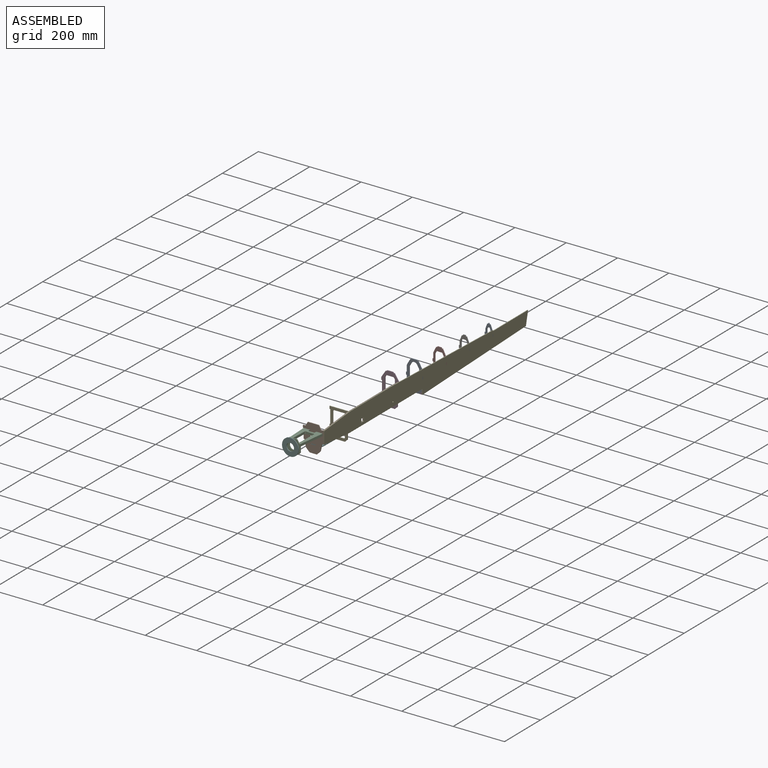
[diagram: assembled view]
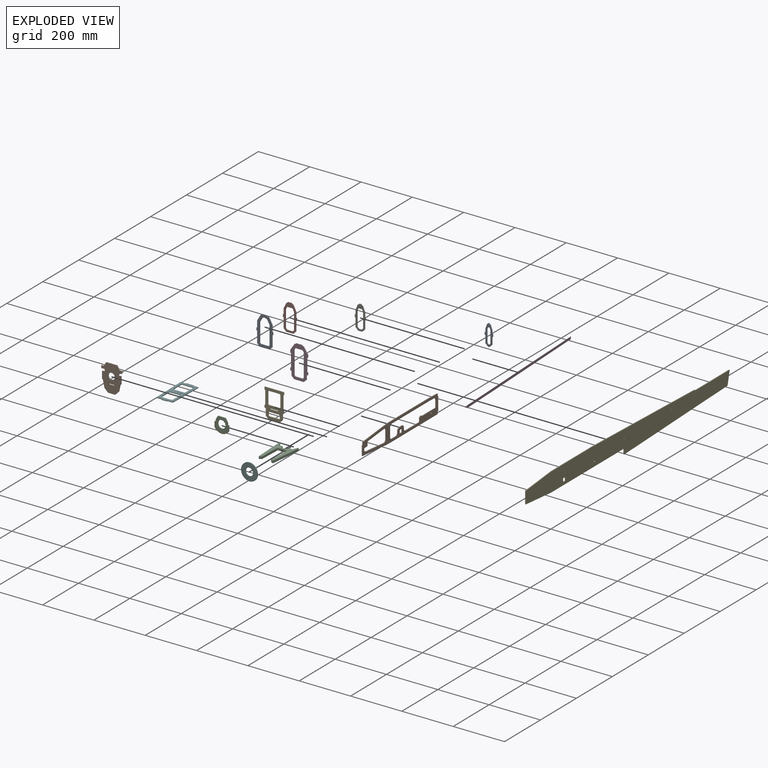
[diagram: exploded view]
GUIDED TOUR — MATED ASSEMBLY (Onshape document c1672e7b410ee009ccfdb484, AutoMate assembly c1672e7b410ee009ccfdb484_3c43f926d65acb8799e96986_1e74896ca7ad628e3d723c2b_default)

This assembly has 14 components, labeled P0..P13 below (a component is one placed occurrence of a part; the same part can appear more than once), held together by 33 mates. A mate is a constraint between two components; its type names the relative motion it leaves free:
  PLANAR — leaves sliding in the plane through the listed point (normal = the listed direction) and rotation about that normal free,
  SLIDER — leaves translation along the listed axis free.
Axis/direction vectors are unit vectors and 'through' points are millimeter coordinates, both in the assembly's world frame.

MATES
  1. PLANAR "Planar 21": P9 <-> P1, direction (0.000, -1.000, 0.000) through (11.20, -937.72, 19.37) mm
  2. PLANAR "Planar 31": P13 <-> P12, direction (1.000, 0.000, 0.000) through (-9.80, -798.22, -33.78) mm
  3. SLIDER "Slider 3": P10 <-> P5, axis (-0.035, -0.999, 0.000) through (-31.00, -1046.59, 1.35) mm
  4. PLANAR "Planar 16": P9 <-> P11, direction (0.000, 1.000, 0.000) through (11.20, -521.72, 31.58) mm
  5. PLANAR "Planar 26": P10 <-> P2, direction (0.999, -0.035, 0.000) through (-7.46, -1045.91, 9.72) mm
  6. PLANAR "Planar 2": P8 <-> P4, direction (0.000, 0.000, 1.000) through (14.20, -1.50, 7.22) mm
  7. PLANAR "Planar 5": P3 <-> P4, direction (0.000, 0.039, -0.999) through (7.70, -105.95, -45.58) mm
  8. PLANAR "Planar 28": P10 <-> P2, direction (0.000, 0.000, 1.000) through (-4.91, -1046.00, 5.22) mm
  9. PLANAR "Planar 24": P2 <-> P1, direction (0.000, 0.000, 1.000) through (-28.48, -980.13, 14.22) mm
  10. PLANAR "Planar 23": P1 <-> P2, direction (0.000, -1.000, 0.000) through (-27.30, -940.72, -11.70) mm
  11. SLIDER "Slider 1": P4 <-> P9, axis (0.000, 0.000, -1.000) through (12.70, -940.72, 0.22) mm
  12. PLANAR "Planar 27": P10 <-> P2, direction (0.035, 0.999, 0.000) through (-30.89, -1043.59, 27.22) mm
  13. PLANAR "Planar 8": P6 <-> P4, direction (0.000, 0.000, 1.000) through (14.20, -130.50, 7.22) mm
  14. PLANAR "Planar 29": P13 <-> P12, direction (0.000, 0.000, 1.000) through (-24.80, -867.57, -32.28) mm
  15. PLANAR "Planar 30": P12 <-> P13, direction (0.000, -1.000, 0.000) through (-24.80, -799.72, -18.61) mm
  16. PLANAR "Planar 22": P9 <-> P1, direction (0.000, 0.000, 1.000) through (11.20, -939.22, 14.22) mm
  17. PLANAR "Planar 1": P4 <-> P8, direction (-1.000, 0.000, 0.000) through (12.70, -388.13, -5.31) mm
  18. PLANAR "Planar 13": P0 <-> P4, direction (1.000, 0.000, 0.000) through (12.70, -392.22, 19.94) mm
  19. PLANAR "Planar 4": P4 <-> P3, direction (-1.000, 0.000, 0.000) through (12.70, -388.13, -5.31) mm
  20. PLANAR "Planar 20": P4 <-> P1, direction (-1.000, 0.000, 0.000) through (12.70, -388.13, -5.31) mm
  21. PLANAR "Planar 12": P4 <-> P0, direction (0.000, 0.000, 1.000) through (14.20, -392.22, -2.78) mm
  22. PLANAR "Planar 19": P12 <-> P9, direction (0.000, 0.000, -1.000) through (11.20, -798.22, 28.22) mm
  23. PLANAR "Planar 17": P12 <-> P4, direction (1.000, 0.000, 0.000) through (12.70, -798.22, 33.22) mm
  24. SLIDER "Slider 2": P9 <-> P4, axis (0.000, 1.000, 0.000) through (12.70, -683.22, 38.22) mm
  25. PLANAR "Planar 10": P4 <-> P7, direction (-1.000, 0.000, 0.000) through (12.70, -388.13, -5.31) mm
  26. PLANAR "Planar 11": P4 <-> P7, direction (0.000, 0.000, 1.000) through (14.20, -260.50, -2.78) mm
  27. PLANAR "Planar 3": P4 <-> P8, direction (0.000, -1.000, 0.000) through (14.20, 0.00, 2.22) mm
  28. PLANAR "Planar 6": P6 <-> P4, direction (0.000, -1.000, 0.000) through (-5.06, -132.00, 2.19) mm
  29. PLANAR "Planar 15": P9 <-> P11, direction (-1.000, 0.000, 0.000) through (9.70, -718.05, -1.67) mm
  30. PLANAR "Planar 14": P9 <-> P4, direction (1.000, 0.000, 0.000) through (12.70, -718.05, -1.67) mm
  31. PLANAR "Planar 7": P4 <-> P6, direction (-1.000, 0.000, 0.000) through (12.70, -388.13, -5.31) mm
  32. PLANAR "Planar 9": P7 <-> P4, direction (0.000, -1.000, 0.000) through (-11.03, -262.00, 2.73) mm
  33. PLANAR "Planar 18": P12 <-> P9, direction (0.000, -1.000, 0.000) through (-24.80, -799.72, -18.61) mm

ASSEMBLY ORDER
  1. P8 — the base component [order verified]
  2. P6 [order verified]
  3. P3 [order verified]
  4. P7 [order verified]
  5. P9 [order verified]
  6. P4 [order verified]
  7. P0 [order verified]
  8. P11 [order verified]
  9. P12 [order verified]
  10. P13 [order verified]
  11. P1 [order verified]
  12. P2 [order verified]
  13. P10 [order verified]
  14. P5 [order verified]
Order-tag legend:
  [order verified] — this step's position reverses a verified removal order: the component was checked to insert without passing through the ones already placed.

Of the 14 components, 11 carry the full construction recipe — the FeatureScript program that regenerates the part's solid from scratch; the rest are supplied as boundary geometry only.
Because this assembly has more than 12 components, the tour below covers the 12 most significant ones individually (every recipe-attached component first, then the largest by part volume), in assembly order; the remaining 2 are summarized together in a grouped section at the end.
Each toured component is shown spotlighted twice — in the assembled view, then in the exploded view, where a leader line traces a displaced component back to its assembled socket (saturated green if recipe-attached, orange if geometry-only; every other component desaturated gray) — followed by its recipe or geometry summary and the mates that hold it.
NOTE — this tour is split across 2 documents so each fits a 32k-token context. This is document 1: the component sections continue in the remaining 1 document, each repeating the header above.
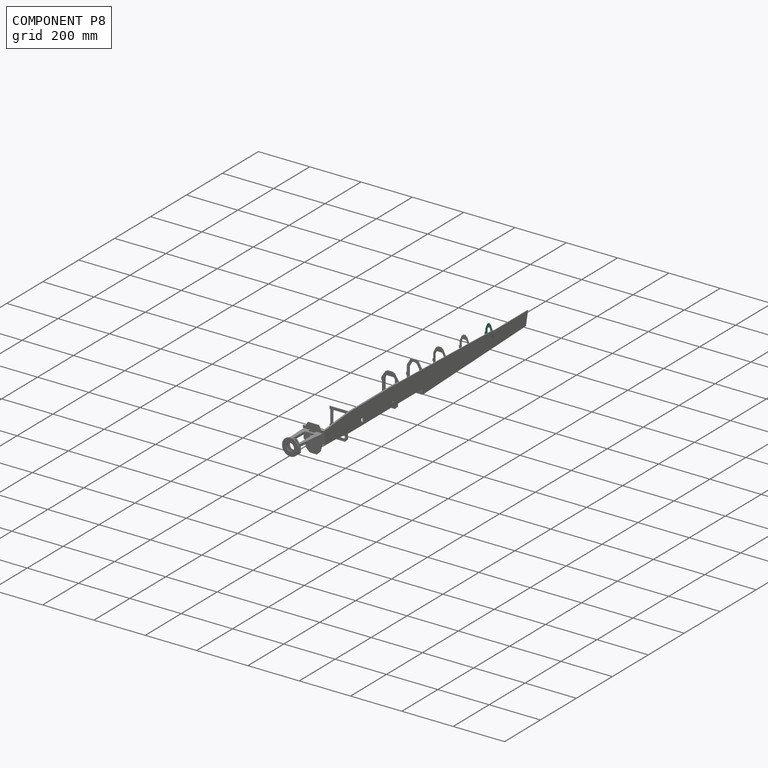
[diagram: component P8 — assembled]
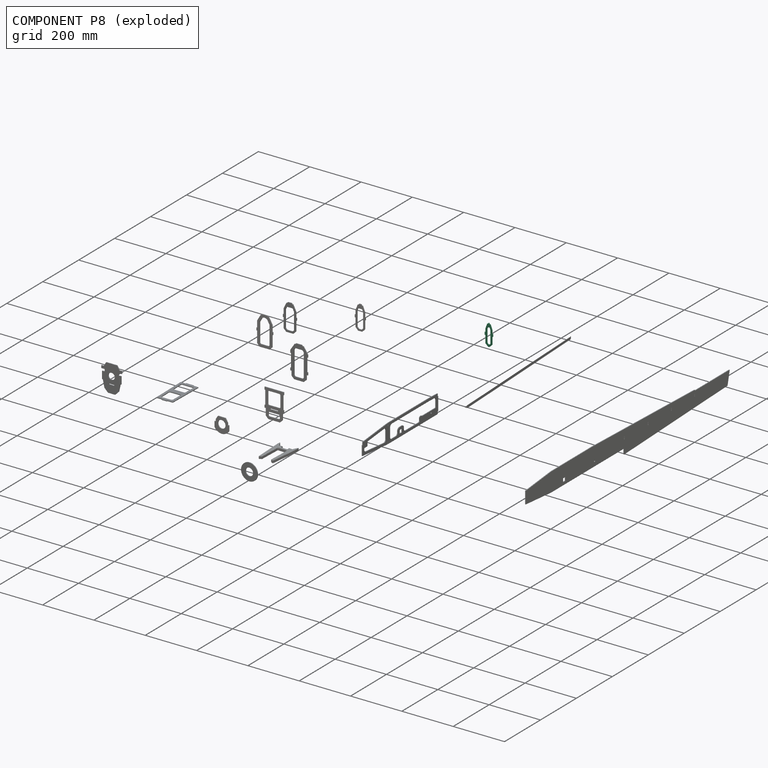
[diagram: component P8 — exploded]
COMPONENT P8 — recipe-attached (CADFS 00352435, mesh-verified: the recipe's output STEP matches this component's geometry to below the mesh-comparison resolution (tessellation chordal tolerance ~0.134 mm)).
Held by: PLANAR mate "Planar 2" to P4; PLANAR mate "Planar 1" to P4; PLANAR mate "Planar 3" to P4.
Construction recipe (FeatureScript — the CAD program that rebuilds this solid; sketch coordinates are in the units given by the * unit suffixes, e.g. mm):

FeatureScript 2581;
import(path : "onshape/std/geometry.fs", version : "2581.0");
import(path : "onshape/std/common.fs", version : "2581.0");
const mm = millimeter;
const VERTEX = EntityType.VERTEX;
const EDGE = EntityType.EDGE;
const FACE = EntityType.FACE;
const BODY = EntityType.BODY;
function v(x, y){return vector(x, y);}
function OD(order){return orderDisambiguation(order);}
function OSD(set){return originalSetDisambiguation(set);}
function TD(topology){return topologyDisambiguation(topology);}
function TDD(query){return trueDependencyDisambiguation(query);}
function sQuery(a, b, c) {return sketchEntityQuery(a, b, c);}

annotation { "Feature Type Name" : "Feature", "Feature Type Description" : "" }
export const myFeature = defineFeature(function(context is Context, id is Id, definition is map)
    precondition{}
    {
        {
            var Q0;
            Q0=qCreatedBy(makeId("Front.planeOp"),FACE);
            var sketch = newSketch(context, id + "F0", { "sketchPlane" : qUnion([Q0])});
            skLineSegment(sketch, "E0.MirrorCS", {"start": v(5.86, 36.8) * mm, "end": v(3.16, 35.5) * mm});
            skLineSegment(sketch, "E1.MirrorCS", {"start": v(3.16, 35.5) * mm, "end": v(0.99, 40) * mm});
            skLineSegment(sketch, "E2.MirrorCS", {"start": v(12.7, 18) * mm, "end": v(5.86, 36.8) * mm});
            skLineSegment(sketch, "E3.MirrorCS", {"start": v(12.7, -33.67) * mm, "end": v(12.7, -5) * mm});
            skLineSegment(sketch, "E4.bottom", {"start": v(15.7, 5) * mm, "end": v(12.7, 5) * mm});
            skLineSegment(sketch, "E4.top", {"start": v(15.7, -5) * mm, "end": v(12.7, -5) * mm});
            skLineSegment(sketch, "E4.left", {"start": v(15.7, 5) * mm, "end": v(15.7, -5) * mm});
            skLineSegment(sketch, "E5.trimOffspring", {"start": v(12.7, 5) * mm, "end": v(12.7, 18) * mm});
            skLineSegment(sketch, "E6.MirrorCS", {"start": v(-15.7, 5) * mm, "end": v(-12.7, 5) * mm});
            skLineSegment(sketch, "E7.MirrorCS", {"start": v(-15.7, 5) * mm, "end": v(-15.7, -5) * mm});
            skLineSegment(sketch, "E8.MirrorCS", {"start": v(-15.7, -5) * mm, "end": v(-12.7, -5) * mm});
            skLineSegment(sketch, "E9", {"start": v(2.7, -43.67) * mm, "end": v(12.7, -33.67) * mm});
            skLineSegment(sketch, "E10.MirrorCS", {"start": v(-2.7, -43.67) * mm, "end": v(-12.7, -33.67) * mm});
            skLineSegment(sketch, "E11", {"start": v(2.7, -43.67) * mm, "end": v(0, -43.67) * mm});
            skLineSegment(sketch, "E12.MirrorCS", {"start": v(-2.7, -43.67) * mm, "end": v(0, -43.67) * mm});
            skLineSegment(sketch, "E13.MirrorCS", {"start": v(-12.7, -33.67) * mm, "end": v(-12.7, -5) * mm});
            skLineSegment(sketch, "E14", {"start": v(0.99, 40) * mm, "end": v(0, 40) * mm});
            skLineSegment(sketch, "E15.MirrorCS", {"start": v(-0.99, 40) * mm, "end": v(0, 40) * mm});
            skLineSegment(sketch, "E16.MirrorCS", {"start": v(-3.16, 35.5) * mm, "end": v(-0.99, 40) * mm});
            skLineSegment(sketch, "E17.MirrorCS", {"start": v(-5.86, 36.8) * mm, "end": v(-3.16, 35.5) * mm});
            skLineSegment(sketch, "E18.MirrorCS", {"start": v(-12.7, 18) * mm, "end": v(-5.86, 36.8) * mm});
            skLineSegment(sketch, "E19.MirrorCS", {"start": v(-12.7, 5) * mm, "end": v(-12.7, 18) * mm});
            skLineSegment(sketch, "E20", {"start": v(-12.7, 5) * mm, "end": v(-12.7, -5) * mm, "construction": true});
            skLineSegment(sketch, "E21", {"start": v(12.7, 5) * mm, "end": v(12.7, -5) * mm, "construction": true});
            skLineSegment(sketch, "E22.2", {"start": v(2.21, -35.67) * mm, "end": v(6.7, -31.18) * mm});
            skLineSegment(sketch, "E22.3", {"start": v(6.7, -31.18) * mm, "end": v(6.7, -4.52) * mm});
            skLineSegment(sketch, "E22.4", {"start": v(6.7, 5.48) * mm, "end": v(6.7, -4.52) * mm});
            skLineSegment(sketch, "E22.5", {"start": v(-6.7, 16.94) * mm, "end": v(-3.77, 25) * mm});
            skLineSegment(sketch, "E22.6", {"start": v(-6.7, 5) * mm, "end": v(-6.7, 16.94) * mm});
            skLineSegment(sketch, "E22.7", {"start": v(-6.7, 5) * mm, "end": v(-6.7, -5) * mm});
            skLineSegment(sketch, "E22.8", {"start": v(-6.7, -31.18) * mm, "end": v(-6.7, -5) * mm});
            skLineSegment(sketch, "E22.13", {"start": v(6.7, 16.94) * mm, "end": v(3.77, 25) * mm});
            skLineSegment(sketch, "E22.14", {"start": v(-2.21, -35.67) * mm, "end": v(-6.7, -31.18) * mm});
            skLineSegment(sketch, "E22.15", {"start": v(6.7, 5.48) * mm, "end": v(6.7, 16.94) * mm});
            skLineSegment(sketch, "E23", {"start": v(-3.77, 25) * mm, "end": v(3.77, 25) * mm});
            skLineSegment(sketch, "E24", {"start": v(-2.21, -35.67) * mm, "end": v(2.21, -35.67) * mm});
            skSolve(sketch);
        }
        {
            var Q0;
            Q0=makeQuery(id+"F0.imprint","IMPRINT",FACE,{"disambiguationData":[TD([[makeQuery(id+"F0.imprint","IMPRINT",EDGE,{"derivedFrom":sQuery(id+"F0.wireOp",EDGE,"E0.MirrorCS")}),1.0]])]});
            extrude(context, id + "F1", {"entities" : qUnion([Q0]), "depth" : 3 * mm, "symmetric" : true});
        }
    });
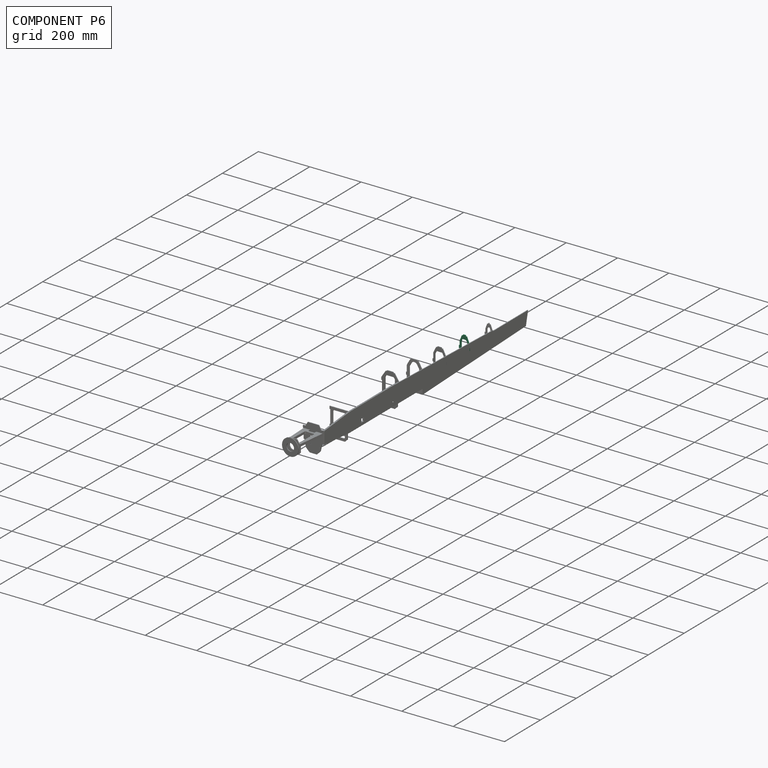
[diagram: component P6 — assembled]
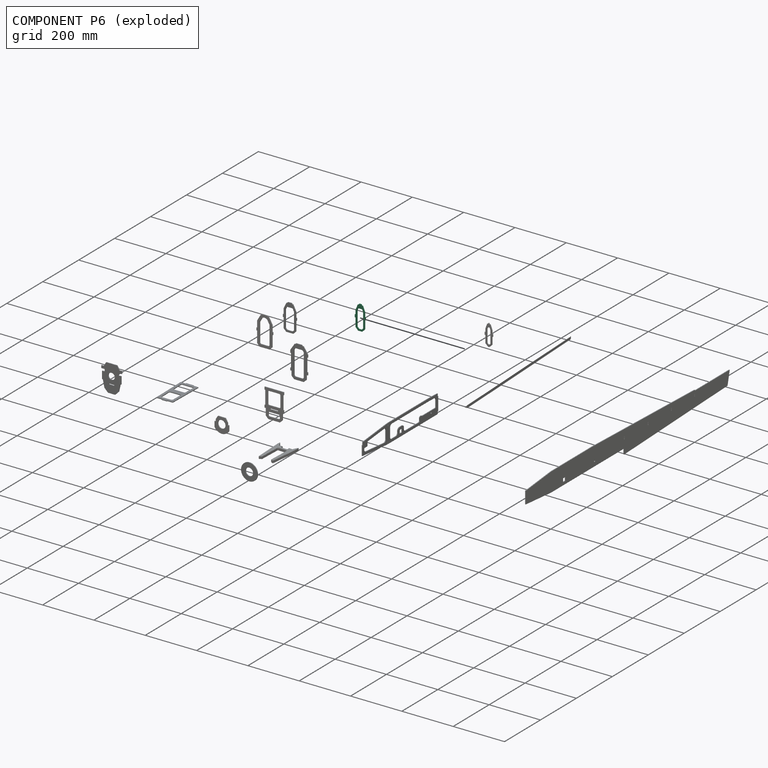
[diagram: component P6 — exploded]
COMPONENT P6 — recipe-attached (CADFS 00352450, mesh-verified: the recipe's output STEP matches this component's geometry to below the mesh-comparison resolution (tessellation chordal tolerance ~0.156 mm)).
Held by: PLANAR mate "Planar 8" to P4; PLANAR mate "Planar 6" to P4; PLANAR mate "Planar 7" to P4.
Construction recipe (FeatureScript — the CAD program that rebuilds this solid; sketch coordinates are in the units given by the * unit suffixes, e.g. mm):

FeatureScript 2581;
import(path : "onshape/std/geometry.fs", version : "2581.0");
import(path : "onshape/std/common.fs", version : "2581.0");
const mm = millimeter;
const VERTEX = EntityType.VERTEX;
const EDGE = EntityType.EDGE;
const FACE = EntityType.FACE;
const BODY = EntityType.BODY;
function v(x, y){return vector(x, y);}
function OD(order){return orderDisambiguation(order);}
function OSD(set){return originalSetDisambiguation(set);}
function TD(topology){return topologyDisambiguation(topology);}
function TDD(query){return trueDependencyDisambiguation(query);}
function sQuery(a, b, c) {return sketchEntityQuery(a, b, c);}

annotation { "Feature Type Name" : "Feature", "Feature Type Description" : "" }
export const myFeature = defineFeature(function(context is Context, id is Id, definition is map)
    precondition{}
    {
        {
            var Q0;
            Q0=qCreatedBy(makeId("Front.planeOp"),FACE);
            var sketch = newSketch(context, id + "F0", { "sketchPlane" : qUnion([Q0])});
            skLineSegment(sketch, "E0", {"start": v(-17.76, 22.17) * mm, "end": v(-17.76, 5) * mm});
            skLineSegment(sketch, "E1", {"start": v(-17.76, -38.8) * mm, "end": v(-7.76, -48.8) * mm});
            skLineSegment(sketch, "E2", {"start": v(-17.76, 22.17) * mm, "end": v(-9.2, 42.81) * mm});
            skLineSegment(sketch, "E3", {"start": v(-9.2, 42.81) * mm, "end": v(-6.43, 41.66) * mm});
            skLineSegment(sketch, "E4", {"start": v(-6.43, 41.66) * mm, "end": v(-4.51, 46.28) * mm});
            skLineSegment(sketch, "E5.MirrorCS", {"start": v(6.43, 41.66) * mm, "end": v(4.51, 46.28) * mm});
            skLineSegment(sketch, "E6.MirrorCS", {"start": v(9.2, 42.81) * mm, "end": v(6.43, 41.66) * mm});
            skLineSegment(sketch, "E7.MirrorCS", {"start": v(17.76, 22.17) * mm, "end": v(17.76, 5) * mm});
            skLineSegment(sketch, "E8.MirrorCS", {"start": v(17.76, 22.17) * mm, "end": v(9.2, 42.81) * mm});
            skLineSegment(sketch, "E9.MirrorCS", {"start": v(17.76, -38.8) * mm, "end": v(7.76, -48.8) * mm});
            skLineSegment(sketch, "E10.0", {"start": v(11.38, 21.9) * mm, "end": v(9.18, 27.2) * mm});
            skLineSegment(sketch, "E10.3", {"start": v(-10.3, -37.79) * mm, "end": v(-6.74, -41.34) * mm});
            skLineSegment(sketch, "E10.4", {"start": v(-3.2, -42.8) * mm, "end": v(0, -42.8) * mm});
            skLineSegment(sketch, "E10.5", {"start": v(0, -42.8) * mm, "end": v(3.2, -42.8) * mm});
            skLineSegment(sketch, "E10.6", {"start": v(10.3, -37.79) * mm, "end": v(6.74, -41.34) * mm});
            skLineSegment(sketch, "E10.7", {"start": v(-11.76, 19.98) * mm, "end": v(-11.76, -34.25) * mm});
            skLineSegment(sketch, "E10.8", {"start": v(-11.38, 21.9) * mm, "end": v(-9.18, 27.2) * mm});
            skLineSegment(sketch, "E10.10", {"start": v(11.76, 19.98) * mm, "end": v(11.76, -34.25) * mm});
            skLineSegment(sketch, "E11", {"start": v(-4.56, 30.28) * mm, "end": v(4.56, 30.28) * mm});
            skArc(sketch, "E12.filletArc", {"start": v(-4.56, 30.28) * mm, "mid": v(-7.34, 29.44) * mm, "end": v(-9.18, 27.2) * mm});
            skArc(sketch, "E13.filletArc", {"start": v(9.18, 27.2) * mm, "mid": v(7.34, 29.44) * mm, "end": v(4.56, 30.28) * mm});
            skArc(sketch, "E14.filletArc", {"start": v(-11.76, -34.25) * mm, "mid": v(-11.38, -36.17) * mm, "end": v(-10.3, -37.79) * mm});
            skArc(sketch, "E15.filletArc", {"start": v(-6.74, -41.34) * mm, "mid": v(-5.12, -42.43) * mm, "end": v(-3.2, -42.8) * mm});
            skArc(sketch, "E16.filletArc", {"start": v(3.2, -42.8) * mm, "mid": v(5.12, -42.43) * mm, "end": v(6.74, -41.34) * mm});
            skArc(sketch, "E17.filletArc", {"start": v(10.3, -37.79) * mm, "mid": v(11.38, -36.17) * mm, "end": v(11.76, -34.25) * mm});
            skArc(sketch, "E18.filletArc", {"start": v(11.76, 19.98) * mm, "mid": v(11.66, 20.96) * mm, "end": v(11.38, 21.9) * mm});
            skArc(sketch, "E19.filletArc", {"start": v(-11.38, 21.9) * mm, "mid": v(-11.66, 20.96) * mm, "end": v(-11.76, 19.98) * mm});
            skLineSegment(sketch, "E20", {"start": v(-4.51, 46.28) * mm, "end": v(4.51, 46.28) * mm});
            skLineSegment(sketch, "E21", {"start": v(-7.76, -48.8) * mm, "end": v(7.76, -48.8) * mm});
            skLineSegment(sketch, "E22", {"start": v(0, 30.28) * mm, "end": v(0, -42.8) * mm, "construction": true});
            skLineSegment(sketch, "E23", {"start": v(-17.76, 5) * mm, "end": v(-20.76, 5) * mm});
            skLineSegment(sketch, "E24", {"start": v(-20.76, 5) * mm, "end": v(-20.76, -5) * mm});
            skLineSegment(sketch, "E25", {"start": v(-20.76, -5) * mm, "end": v(-17.76, -5) * mm});
            skLineSegment(sketch, "E26.trimOffspring", {"start": v(-17.76, -5) * mm, "end": v(-17.76, -38.8) * mm});
            skLineSegment(sketch, "E27.MirrorCS", {"start": v(17.76, 5) * mm, "end": v(20.76, 5) * mm});
            skLineSegment(sketch, "E28.MirrorCS", {"start": v(20.76, 5) * mm, "end": v(20.76, -5) * mm});
            skLineSegment(sketch, "E29.MirrorCS", {"start": v(20.76, -5) * mm, "end": v(17.76, -5) * mm});
            skLineSegment(sketch, "E30.trimOffspring", {"start": v(17.76, -5) * mm, "end": v(17.76, -38.8) * mm});
            skSolve(sketch);
        }
        {
            var Q0;
            Q0=makeQuery(id+"F0.imprint","IMPRINT",FACE,{"disambiguationData":[TD([[makeQuery(id+"F0.imprint","IMPRINT",EDGE,{"derivedFrom":sQuery(id+"F0.wireOp",EDGE,"E0")}),1.0]])]});
            extrude(context, id + "F1", {"entities" : qUnion([Q0]), "depth" : 3 * mm, "symmetric" : true});
        }
    });
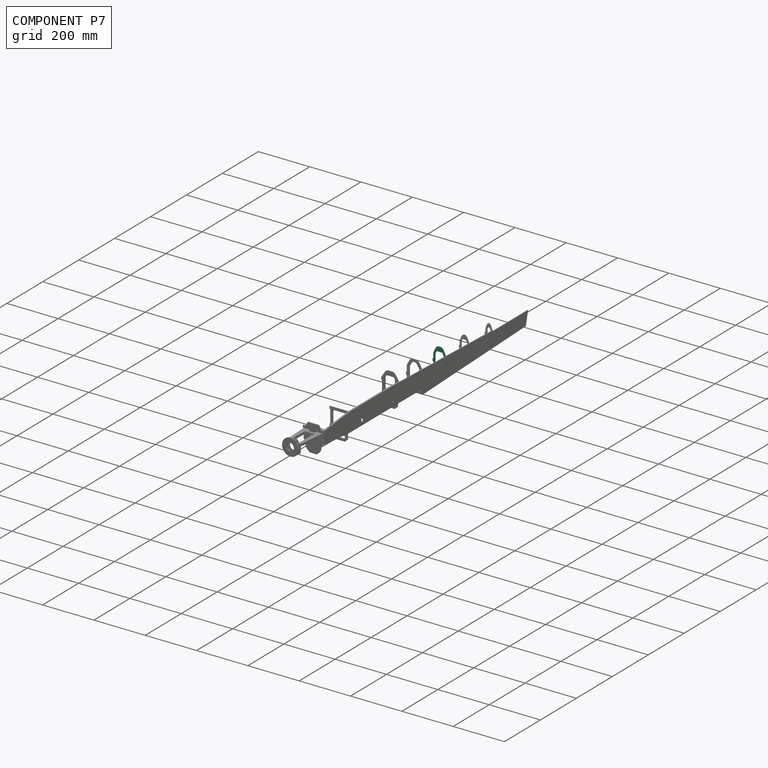
[diagram: component P7 — assembled]
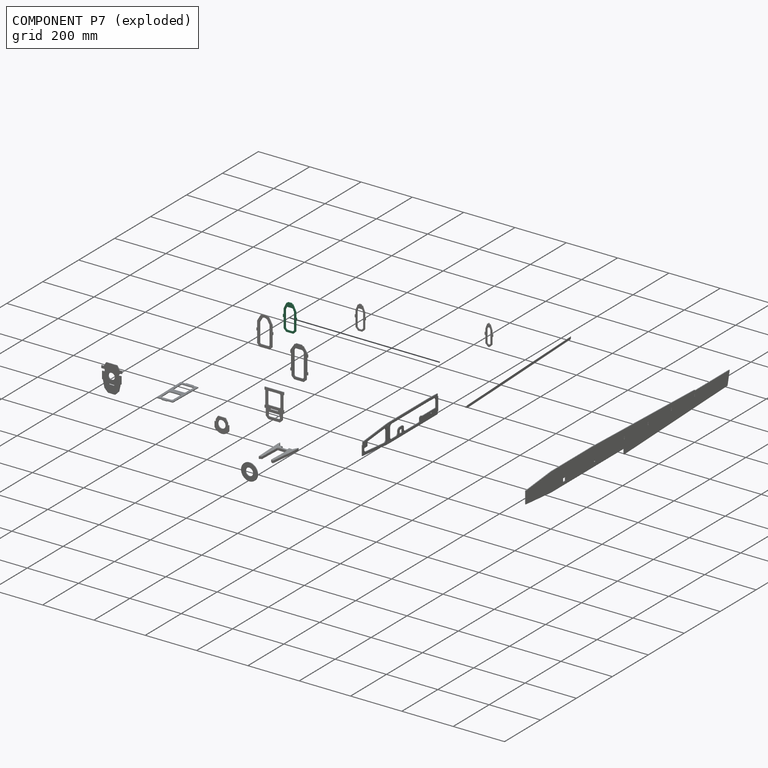
[diagram: component P7 — exploded]
COMPONENT P7 — recipe-attached (CADFS 00352451, mesh-verified: the recipe's output STEP matches this component's geometry to below the mesh-comparison resolution (tessellation chordal tolerance ~0.178 mm)).
Held by: PLANAR mate "Planar 10" to P4; PLANAR mate "Planar 11" to P4; PLANAR mate "Planar 9" to P4.
Construction recipe (FeatureScript — the CAD program that rebuilds this solid; sketch coordinates are in the units given by the * unit suffixes, e.g. mm):

FeatureScript 2581;
import(path : "onshape/std/geometry.fs", version : "2581.0");
import(path : "onshape/std/common.fs", version : "2581.0");
const mm = millimeter;
const VERTEX = EntityType.VERTEX;
const EDGE = EntityType.EDGE;
const FACE = EntityType.FACE;
const BODY = EntityType.BODY;
function v(x, y){return vector(x, y);}
function OD(order){return orderDisambiguation(order);}
function OSD(set){return originalSetDisambiguation(set);}
function TD(topology){return topologyDisambiguation(topology);}
function TDD(query){return trueDependencyDisambiguation(query);}
function sQuery(a, b, c) {return sketchEntityQuery(a, b, c);}

annotation { "Feature Type Name" : "Feature", "Feature Type Description" : "" }
export const myFeature = defineFeature(function(context is Context, id is Id, definition is map)
    precondition{}
    {
        {
            var Q0;
            Q0=qCreatedBy(makeId("Front.planeOp"),FACE);
            var sketch = newSketch(context, id + "F0", { "sketchPlane" : qUnion([Q0])});
            skLineSegment(sketch, "E0.bottom", {"start": v(13.73, -53.87) * mm, "end": v(-13.72, -53.87) * mm});
            skLineSegment(sketch, "E0.top", {"start": v(7.44, 51.94) * mm, "end": v(-7.44, 51.94) * mm});
            skLineSegment(sketch, "E0.left", {"start": v(23.73, -43.87) * mm, "end": v(23.73, -5) * mm});
            skLineSegment(sketch, "E0.right", {"start": v(-23.72, -43.87) * mm, "end": v(-23.73, -5) * mm});
            skPoint(sketch, "E0.middle", {"position": v(0, 0) * mm});
            skPoint(sketch, "E1", {"position": v(-23.72, -43.87) * mm});
            skPoint(sketch, "E2", {"position": v(-13.72, -53.87) * mm});
            skLineSegment(sketch, "E3", {"start": v(-23.73, -43.87) * mm, "end": v(-13.72, -53.87) * mm});
            skLineSegment(sketch, "E4", {"start": v(0, 52.83) * mm, "end": v(0, -53.87) * mm, "construction": true});
            skLineSegment(sketch, "E5.MirrorCS", {"start": v(23.73, -43.87) * mm, "end": v(13.73, -53.87) * mm});
            skLineSegment(sketch, "E6", {"start": v(-23.73, 26.28) * mm, "end": v(-12.37, 48.82) * mm});
            skLineSegment(sketch, "E7", {"start": v(-12.37, 48.82) * mm, "end": v(-9.7, 47.47) * mm});
            skLineSegment(sketch, "E8", {"start": v(-9.7, 47.47) * mm, "end": v(-7.44, 51.94) * mm});
            skLineSegment(sketch, "E9.MirrorCS", {"start": v(9.7, 47.47) * mm, "end": v(7.44, 51.94) * mm});
            skLineSegment(sketch, "E10.MirrorCS", {"start": v(12.37, 48.82) * mm, "end": v(9.7, 47.47) * mm});
            skLineSegment(sketch, "E11.MirrorCS", {"start": v(23.72, 26.28) * mm, "end": v(12.37, 48.82) * mm});
            skLineSegment(sketch, "E12.0", {"start": v(-15.26, -42.44) * mm, "end": v(-12.29, -45.4) * mm});
            skLineSegment(sketch, "E12.4", {"start": v(-16.2, 25.68) * mm, "end": v(-12.91, 32.19) * mm});
            skLineSegment(sketch, "E12.6", {"start": v(-16.73, -38.9) * mm, "end": v(-16.73, 23.43) * mm});
            skLineSegment(sketch, "E12.8", {"start": v(16.2, 25.68) * mm, "end": v(12.91, 32.19) * mm});
            skLineSegment(sketch, "E12.9", {"start": v(16.73, -38.9) * mm, "end": v(16.73, 23.43) * mm});
            skLineSegment(sketch, "E12.10", {"start": v(15.26, -42.44) * mm, "end": v(12.29, -45.4) * mm});
            skLineSegment(sketch, "E12.11", {"start": v(8.75, -46.87) * mm, "end": v(-8.75, -46.87) * mm});
            skLineSegment(sketch, "E13", {"start": v(-8.45, 34.94) * mm, "end": v(8.45, 34.94) * mm});
            skPoint(sketch, "E14.visualSharp", {"position": v(-11.53, 34.94) * mm});
            skArc(sketch, "E14.filletArc", {"start": v(-8.45, 34.94) * mm, "mid": v(-11.07, 34.2) * mm, "end": v(-12.91, 32.19) * mm});
            skPoint(sketch, "E15.visualSharp", {"position": v(-16.73, 24.61) * mm});
            skArc(sketch, "E15.filletArc", {"start": v(-16.2, 25.68) * mm, "mid": v(-16.59, 24.58) * mm, "end": v(-16.73, 23.43) * mm});
            skPoint(sketch, "E16.visualSharp", {"position": v(11.53, 34.94) * mm});
            skArc(sketch, "E16.filletArc", {"start": v(12.91, 32.19) * mm, "mid": v(11.07, 34.2) * mm, "end": v(8.45, 34.94) * mm});
            skPoint(sketch, "E17.visualSharp", {"position": v(16.72, 24.61) * mm});
            skArc(sketch, "E17.filletArc", {"start": v(16.73, 23.43) * mm, "mid": v(16.59, 24.58) * mm, "end": v(16.2, 25.68) * mm});
            skPoint(sketch, "E18.visualSharp", {"position": v(-16.73, -40.97) * mm});
            skArc(sketch, "E18.filletArc", {"start": v(-16.72, -38.9) * mm, "mid": v(-16.34, -40.81) * mm, "end": v(-15.26, -42.44) * mm});
            skPoint(sketch, "E19.visualSharp", {"position": v(-10.83, -46.87) * mm});
            skArc(sketch, "E19.filletArc", {"start": v(-12.29, -45.4) * mm, "mid": v(-10.67, -46.5) * mm, "end": v(-8.75, -46.87) * mm});
            skPoint(sketch, "E20.visualSharp", {"position": v(10.83, -46.87) * mm});
            skArc(sketch, "E20.filletArc", {"start": v(8.75, -46.87) * mm, "mid": v(10.67, -46.5) * mm, "end": v(12.29, -45.4) * mm});
            skPoint(sketch, "E21.visualSharp", {"position": v(16.73, -40.97) * mm});
            skArc(sketch, "E21.filletArc", {"start": v(15.26, -42.44) * mm, "mid": v(16.34, -40.81) * mm, "end": v(16.73, -38.9) * mm});
            skLineSegment(sketch, "E22", {"start": v(-23.73, -5) * mm, "end": v(-26.73, -5) * mm});
            skLineSegment(sketch, "E23", {"start": v(-26.72, -5) * mm, "end": v(-26.72, 5) * mm});
            skLineSegment(sketch, "E24", {"start": v(-26.73, 5) * mm, "end": v(-23.73, 5) * mm});
            skLineSegment(sketch, "E25.trimOffspring", {"start": v(-23.73, 5) * mm, "end": v(-23.73, 26.28) * mm});
            skLineSegment(sketch, "E26.MirrorCS", {"start": v(26.73, 5) * mm, "end": v(23.73, 5) * mm});
            skLineSegment(sketch, "E27.MirrorCS", {"start": v(26.72, -5) * mm, "end": v(26.72, 5) * mm});
            skLineSegment(sketch, "E28.MirrorCS", {"start": v(23.73, -5) * mm, "end": v(26.73, -5) * mm});
            skLineSegment(sketch, "E29.trimOffspring", {"start": v(23.73, 5) * mm, "end": v(23.73, 26.28) * mm});
            skSolve(sketch);
        }
        {
            var Q0;
            Q0 = qSketchRegion(id + "F0", true);
            extrude(context, id + "F1", {"entities" : qUnion([Q0]), "depth" : 3 * mm, "symmetric" : true});
        }
    });
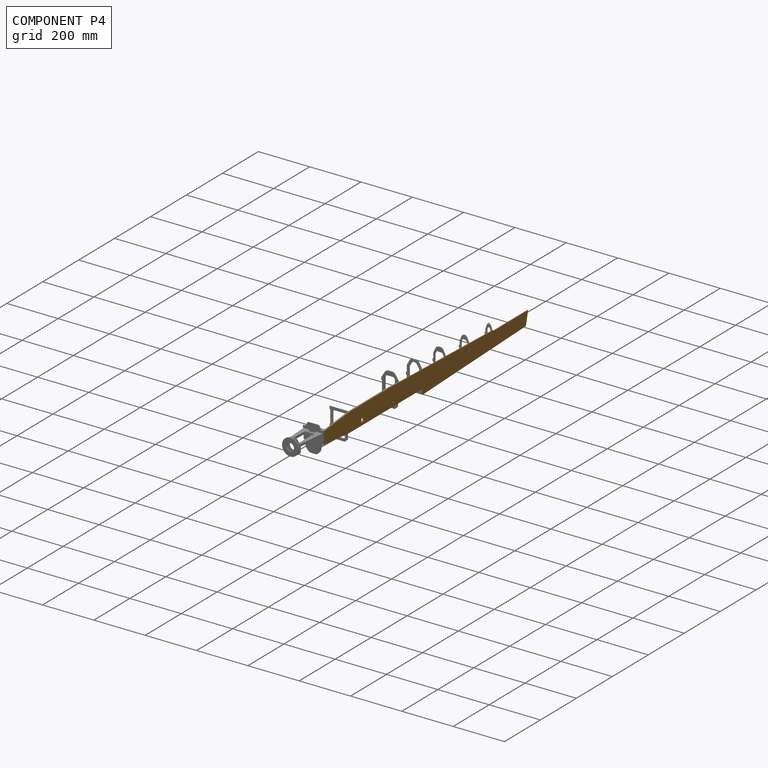
[diagram: component P4 — assembled]
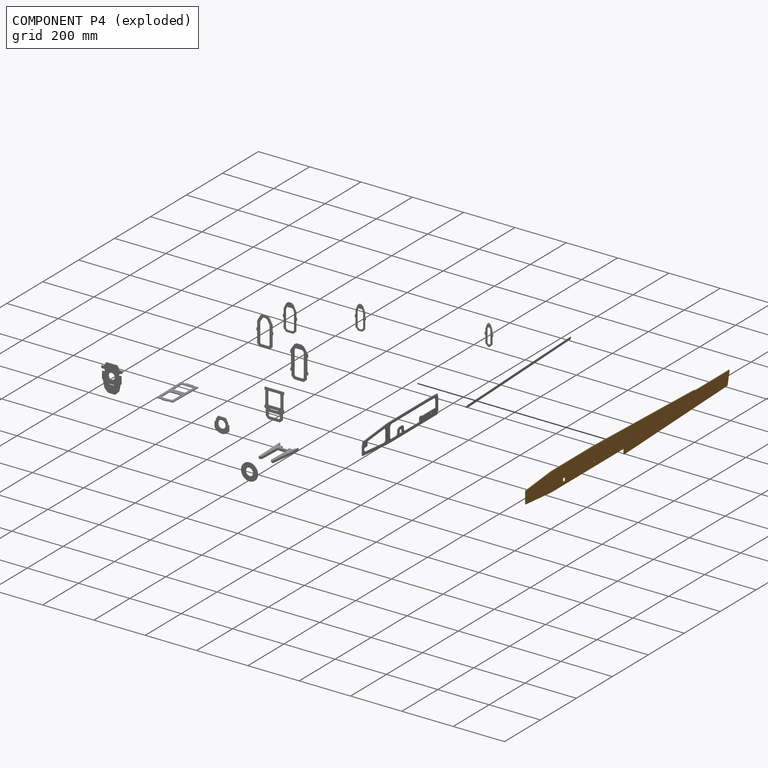
[diagram: component P4 — exploded]
COMPONENT P4 — geometry summary (no construction recipe available for this part):
  bounding box: 1134.7 x 95.0 x 3.0 mm
  B-rep topology: 1 solid, 34 faces, 192 edges
  volume: 233723 mm^3 (72% of its bounding box)
  symmetry: mirror-symmetric across its x mid-plane
Held by: PLANAR mate "Planar 2" to P8; PLANAR mate "Planar 5" to P3; SLIDER mate "Slider 1" to P9; PLANAR mate "Planar 8" to P6; PLANAR mate "Planar 1" to P8; PLANAR mate "Planar 13" to P0; PLANAR mate "Planar 4" to P3; PLANAR mate "Planar 20" to P1; PLANAR mate "Planar 12" to P0; PLANAR mate "Planar 17" to P12; SLIDER mate "Slider 2" to P9; PLANAR mate "Planar 10" to P7; PLANAR mate "Planar 11" to P7; PLANAR mate "Planar 3" to P8; PLANAR mate "Planar 6" to P6; PLANAR mate "Planar 14" to P9; PLANAR mate "Planar 7" to P6; PLANAR mate "Planar 9" to P7.
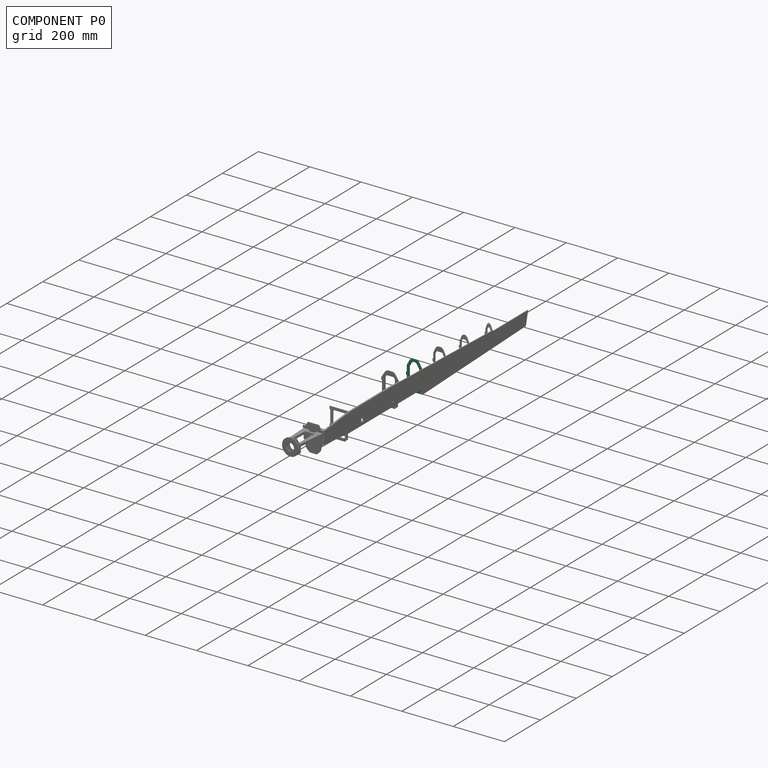
[diagram: component P0 — assembled]
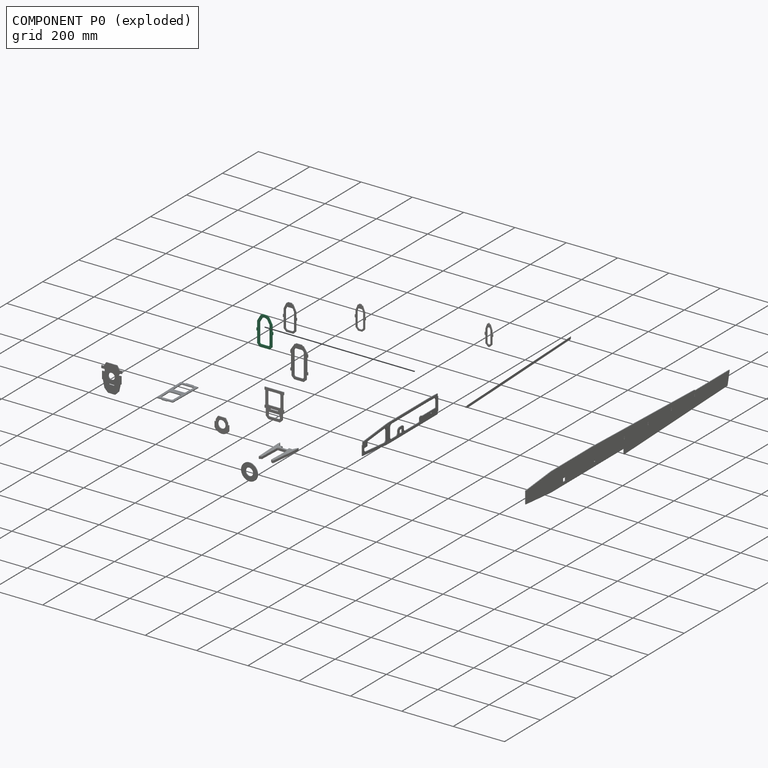
[diagram: component P0 — exploded]
COMPONENT P0 — recipe-attached (CADFS 00352443, mesh-verified: the recipe's output STEP matches this component's geometry to below the mesh-comparison resolution (tessellation chordal tolerance ~0.2 mm)).
Held by: PLANAR mate "Planar 13" to P4; PLANAR mate "Planar 12" to P4.
Construction recipe (FeatureScript — the CAD program that rebuilds this solid; sketch coordinates are in the units given by the * unit suffixes, e.g. mm):

FeatureScript 2581;
import(path : "onshape/std/geometry.fs", version : "2581.0");
import(path : "onshape/std/common.fs", version : "2581.0");
const mm = millimeter;
const VERTEX = EntityType.VERTEX;
const EDGE = EntityType.EDGE;
const FACE = EntityType.FACE;
const BODY = EntityType.BODY;
function v(x, y){return vector(x, y);}
function OD(order){return orderDisambiguation(order);}
function OSD(set){return originalSetDisambiguation(set);}
function TD(topology){return topologyDisambiguation(topology);}
function TDD(query){return trueDependencyDisambiguation(query);}
function sQuery(a, b, c) {return sketchEntityQuery(a, b, c);}

annotation { "Feature Type Name" : "Feature", "Feature Type Description" : "" }
export const myFeature = defineFeature(function(context is Context, id is Id, definition is map)
    precondition{}
    {
        {
            var Q0;
            Q0=qCreatedBy(makeId("Front.planeOp"),FACE);
            var sketch = newSketch(context, id + "F0", { "sketchPlane" : qUnion([Q0])});
            skLineSegment(sketch, "E0.bottom", {"start": v(19.25, -59) * mm, "end": v(-19.25, -59) * mm});
            skLineSegment(sketch, "E0.top", {"start": v(10.04, 57.7) * mm, "end": v(-10.04, 57.7) * mm});
            skLineSegment(sketch, "E0.left", {"start": v(29.25, -49) * mm, "end": v(29.25, -5) * mm});
            skLineSegment(sketch, "E0.right", {"start": v(-29.25, -49) * mm, "end": v(-29.25, -5) * mm});
            skPoint(sketch, "E0.middle", {"position": v(0, -0.93) * mm});
            skPoint(sketch, "E1", {"position": v(-13.5, 57.7) * mm});
            skLineSegment(sketch, "E2", {"start": v(-15.13, 54.87) * mm, "end": v(-29.25, 30.44) * mm});
            skLineSegment(sketch, "E3", {"start": v(-10.04, 57.7) * mm, "end": v(-12.54, 53.37) * mm});
            skLineSegment(sketch, "E4", {"start": v(-12.54, 53.37) * mm, "end": v(-15.13, 54.87) * mm});
            skPoint(sketch, "E5.orphan", {"position": v(-29.25, 57.7) * mm});
            skLineSegment(sketch, "E6.MirrorCS", {"start": v(10.04, 57.7) * mm, "end": v(12.54, 53.37) * mm});
            skLineSegment(sketch, "E7.MirrorCS", {"start": v(12.54, 53.37) * mm, "end": v(15.13, 54.87) * mm});
            skLineSegment(sketch, "E8.MirrorCS", {"start": v(15.13, 54.87) * mm, "end": v(29.25, 30.44) * mm});
            skPoint(sketch, "E9.orphan", {"position": v(29.25, 57.7) * mm});
            skLineSegment(sketch, "E10", {"start": v(-29.25, 5) * mm, "end": v(-32.25, 5) * mm});
            skLineSegment(sketch, "E11", {"start": v(-32.25, 5) * mm, "end": v(-32.25, -5) * mm});
            skLineSegment(sketch, "E12", {"start": v(-32.25, -5) * mm, "end": v(-29.25, -5) * mm});
            skLineSegment(sketch, "E13.trimOffspring", {"start": v(-29.25, 5) * mm, "end": v(-29.25, 30.44) * mm});
            skLineSegment(sketch, "E14.MirrorCS", {"start": v(29.25, 5) * mm, "end": v(32.25, 5) * mm});
            skLineSegment(sketch, "E15.MirrorCS", {"start": v(32.25, 5) * mm, "end": v(32.25, -5) * mm});
            skLineSegment(sketch, "E16.MirrorCS", {"start": v(32.25, -5) * mm, "end": v(29.25, -5) * mm});
            skLineSegment(sketch, "E17.trimOffspring", {"start": v(29.25, 5) * mm, "end": v(29.25, 30.44) * mm});
            skLineSegment(sketch, "E18", {"start": v(-29.25, -49) * mm, "end": v(-19.25, -59) * mm});
            skLineSegment(sketch, "E19.MirrorCS", {"start": v(29.25, -49) * mm, "end": v(19.25, -59) * mm});
            skLineSegment(sketch, "E20.0", {"start": v(19.25, -44.86) * mm, "end": v(15.1, -49) * mm});
            skLineSegment(sketch, "E20.1", {"start": v(19.25, -44.86) * mm, "end": v(19.25, 0) * mm});
            skLineSegment(sketch, "E20.2", {"start": v(19.25, 0) * mm, "end": v(19.25, 27.76) * mm});
            skLineSegment(sketch, "E20.3", {"start": v(-11.48, 41.21) * mm, "end": v(-19.25, 27.76) * mm});
            skLineSegment(sketch, "E20.4", {"start": v(-19.25, 0) * mm, "end": v(-19.25, 27.76) * mm});
            skLineSegment(sketch, "E20.5", {"start": v(-19.25, -44.86) * mm, "end": v(-19.25, 0) * mm});
            skLineSegment(sketch, "E20.6", {"start": v(-19.25, -44.86) * mm, "end": v(-15.1, -49) * mm});
            skLineSegment(sketch, "E20.10", {"start": v(15.1, -49) * mm, "end": v(-15.1, -49) * mm});
            skLineSegment(sketch, "E20.13", {"start": v(11.47, 41.23) * mm, "end": v(19.25, 27.76) * mm});
            skArc(sketch, "E21", {"start": v(11.47, 41.23) * mm, "mid": v(0, 47.85) * mm, "end": v(-11.48, 41.21) * mm});
            skSolve(sketch);
        }
        {
            var Q0;
            Q0 = qSketchRegion(id + "F0", true);
            extrude(context, id + "F1", {"entities" : qUnion([Q0]), "depth" : 3 * mm, "symmetric" : true});
        }
    });
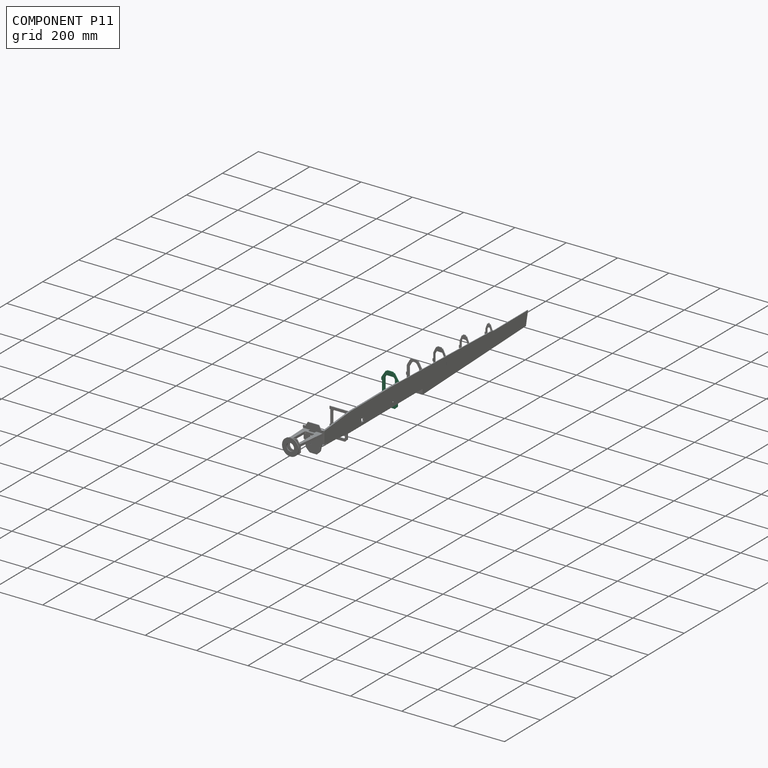
[diagram: component P11 — assembled]
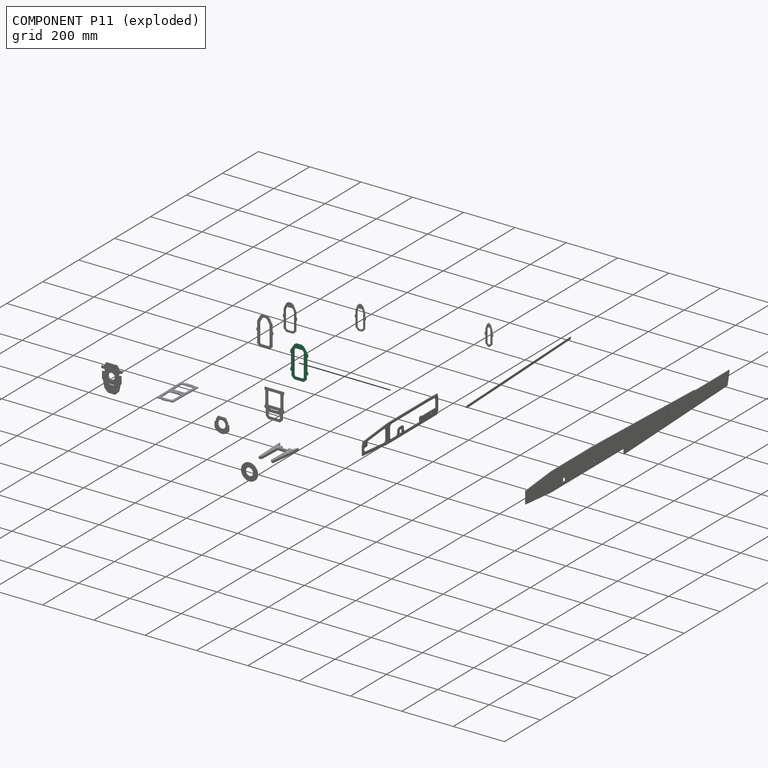
[diagram: component P11 — exploded]
COMPONENT P11 — recipe-attached (CADFS 00352444, mesh-verified: the recipe's output STEP matches this component's geometry to below the mesh-comparison resolution (tessellation chordal tolerance ~0.217 mm)).
Held by: PLANAR mate "Planar 16" to P9; PLANAR mate "Planar 15" to P9.
Construction recipe (FeatureScript — the CAD program that rebuilds this solid; sketch coordinates are in the units given by the * unit suffixes, e.g. mm):

FeatureScript 2581;
import(path : "onshape/std/geometry.fs", version : "2581.0");
import(path : "onshape/std/common.fs", version : "2581.0");
const mm = millimeter;
const VERTEX = EntityType.VERTEX;
const EDGE = EntityType.EDGE;
const FACE = EntityType.FACE;
const BODY = EntityType.BODY;
function v(x, y){return vector(x, y);}
function OD(order){return orderDisambiguation(order);}
function OSD(set){return originalSetDisambiguation(set);}
function TD(topology){return topologyDisambiguation(topology);}
function TDD(query){return trueDependencyDisambiguation(query);}
function sQuery(a, b, c) {return sketchEntityQuery(a, b, c);}

annotation { "Feature Type Name" : "Feature", "Feature Type Description" : "" }
export const myFeature = defineFeature(function(context is Context, id is Id, definition is map)
    precondition{}
    {
        {
            var Q0;
            Q0=qCreatedBy(makeId("Front.planeOp"),FACE);
            var sketch = newSketch(context, id + "F0", { "sketchPlane" : qUnion([Q0])});
            skLineSegment(sketch, "E0.bottom", {"start": v(-11.4, 63.5) * mm, "end": v(11.4, 63.5) * mm});
            skLineSegment(sketch, "E0.top", {"start": v(-18.7, -64.3) * mm, "end": v(18.7, -64.3) * mm});
            skLineSegment(sketch, "E0.left", {"start": v(-34, 35) * mm, "end": v(-34, 25) * mm});
            skPoint(sketch, "E0.middle", {"position": v(0, -0.4) * mm});
            skPoint(sketch, "E1", {"position": v(-15, 63.5) * mm});
            skLineSegment(sketch, "E2", {"start": v(-16.66, 61) * mm, "end": v(-34, 35) * mm});
            skLineSegment(sketch, "E3", {"start": v(-11.4, 63.5) * mm, "end": v(-14.17, 59.34) * mm});
            skLineSegment(sketch, "E4", {"start": v(-14.17, 59.34) * mm, "end": v(-16.66, 61) * mm});
            skPoint(sketch, "E5.orphan", {"position": v(-34, 63.5) * mm});
            skLineSegment(sketch, "E6", {"start": v(-34, 25) * mm, "end": v(-31, 25) * mm});
            skLineSegment(sketch, "E7", {"start": v(-31, 25) * mm, "end": v(-31, -27) * mm});
            skLineSegment(sketch, "E8", {"start": v(-31, -27) * mm, "end": v(-34, -27) * mm});
            skLineSegment(sketch, "E9.trimOffspring", {"start": v(-34, -27) * mm, "end": v(-34, -37) * mm});
            skLineSegment(sketch, "E10", {"start": v(-34, -37) * mm, "end": v(-29, -37) * mm});
            skLineSegment(sketch, "E11", {"start": v(-29, -37) * mm, "end": v(-29, -54) * mm});
            skLineSegment(sketch, "E12", {"start": v(-29, -54) * mm, "end": v(-18.7, -64.3) * mm});
            skPoint(sketch, "E13.orphan", {"position": v(-34, -64.3) * mm});
            skLineSegment(sketch, "E14.MirrorCS", {"start": v(11.4, 63.5) * mm, "end": v(14.17, 59.34) * mm});
            skLineSegment(sketch, "E15.MirrorCS", {"start": v(14.17, 59.34) * mm, "end": v(16.66, 61) * mm});
            skLineSegment(sketch, "E16.MirrorCS", {"start": v(16.66, 61) * mm, "end": v(34, 35) * mm});
            skLineSegment(sketch, "E17.MirrorCS", {"start": v(34, 35) * mm, "end": v(34, 25) * mm});
            skLineSegment(sketch, "E18.MirrorCS", {"start": v(34, 25) * mm, "end": v(31, 25) * mm});
            skLineSegment(sketch, "E19.MirrorCS", {"start": v(31, 25) * mm, "end": v(31, -27) * mm});
            skLineSegment(sketch, "E20.MirrorCS", {"start": v(34, -27) * mm, "end": v(34, -37) * mm});
            skLineSegment(sketch, "E21.MirrorCS", {"start": v(29, -37) * mm, "end": v(29, -54) * mm});
            skLineSegment(sketch, "E22.MirrorCS", {"start": v(29, -54) * mm, "end": v(18.7, -64.3) * mm});
            skLineSegment(sketch, "E23", {"start": v(31, -27) * mm, "end": v(34, -27) * mm});
            skLineSegment(sketch, "E24", {"start": v(34, -37) * mm, "end": v(29, -37) * mm});
            skPoint(sketch, "E25.orphan", {"position": v(34, -64.3) * mm});
            skPoint(sketch, "E0.right.start.orphan", {"position": v(34, 63.5) * mm});
            skLineSegment(sketch, "E26.5", {"start": v(-15.8, 44.27) * mm, "end": v(-18.16, 40.73) * mm});
            skLineSegment(sketch, "E26.6", {"start": v(15.8, 44.27) * mm, "end": v(18.16, 40.73) * mm});
            skLineSegment(sketch, "E26.8", {"start": v(-19, 37.96) * mm, "end": v(-19, -47.79) * mm});
            skLineSegment(sketch, "E26.12", {"start": v(-17.54, -51.32) * mm, "end": v(-16.02, -52.84) * mm});
            skLineSegment(sketch, "E26.13", {"start": v(-12.49, -54.3) * mm, "end": v(12.49, -54.3) * mm});
            skLineSegment(sketch, "E26.14", {"start": v(17.54, -51.32) * mm, "end": v(16.02, -52.84) * mm});
            skLineSegment(sketch, "E26.15", {"start": v(19, 37.96) * mm, "end": v(19, -47.79) * mm});
            skLineSegment(sketch, "E27", {"start": v(-11.64, 46.5) * mm, "end": v(11.64, 46.5) * mm});
            skPoint(sketch, "E28.visualSharp", {"position": v(-19, -49.86) * mm});
            skArc(sketch, "E28.filletArc", {"start": v(-19, -47.79) * mm, "mid": v(-18.62, -49.7) * mm, "end": v(-17.54, -51.32) * mm});
            skPoint(sketch, "E29.visualSharp", {"position": v(-14.56, -54.3) * mm});
            skArc(sketch, "E29.filletArc", {"start": v(-16.02, -52.84) * mm, "mid": v(-14.4, -53.92) * mm, "end": v(-12.49, -54.3) * mm});
            skPoint(sketch, "E30.visualSharp", {"position": v(14.56, -54.3) * mm});
            skArc(sketch, "E30.filletArc", {"start": v(12.49, -54.3) * mm, "mid": v(14.4, -53.92) * mm, "end": v(16.02, -52.84) * mm});
            skPoint(sketch, "E31.visualSharp", {"position": v(19, -49.86) * mm});
            skArc(sketch, "E31.filletArc", {"start": v(17.54, -51.32) * mm, "mid": v(18.62, -49.7) * mm, "end": v(19, -47.79) * mm});
            skPoint(sketch, "E32.visualSharp", {"position": v(14.31, 46.5) * mm});
            skArc(sketch, "E32.filletArc", {"start": v(15.8, 44.27) * mm, "mid": v(14, 45.9) * mm, "end": v(11.64, 46.5) * mm});
            skPoint(sketch, "E33.visualSharp", {"position": v(-14.31, 46.5) * mm});
            skArc(sketch, "E33.filletArc", {"start": v(-11.64, 46.5) * mm, "mid": v(-14, 45.9) * mm, "end": v(-15.8, 44.27) * mm});
            skPoint(sketch, "E34.visualSharp", {"position": v(-19, 39.47) * mm});
            skArc(sketch, "E34.filletArc", {"start": v(-18.16, 40.73) * mm, "mid": v(-18.79, 39.4) * mm, "end": v(-19, 37.96) * mm});
            skPoint(sketch, "E35.visualSharp", {"position": v(19, 39.47) * mm});
            skArc(sketch, "E35.filletArc", {"start": v(19, 37.96) * mm, "mid": v(18.79, 39.4) * mm, "end": v(18.16, 40.73) * mm});
            skSolve(sketch);
        }
        {
            var Q0;
            Q0 = qSketchRegion(id + "F0", true);
            extrude(context, id + "F1", {"entities" : qUnion([Q0]), "depth" : 3 * mm, "symmetric" : true});
        }
    });
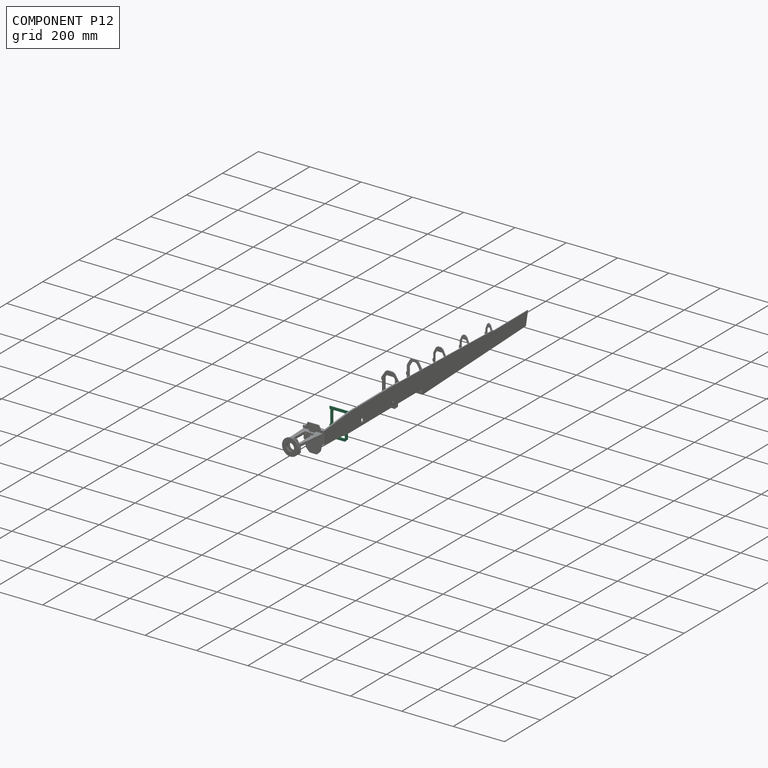
[diagram: component P12 — assembled]
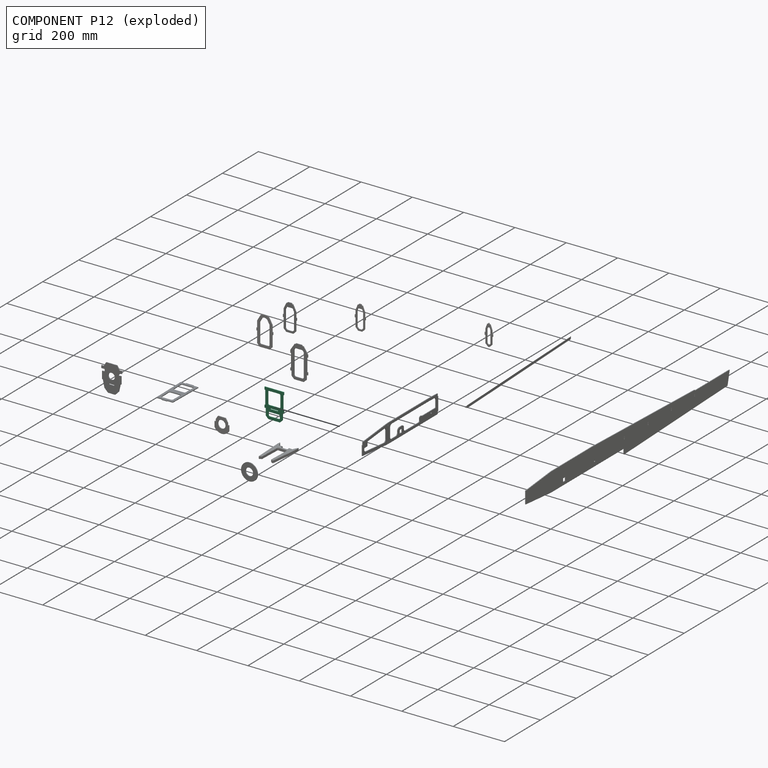
[diagram: component P12 — exploded]
COMPONENT P12 — recipe-attached (CADFS 00352442, mesh-verified: the recipe's output STEP matches this component's geometry to below the mesh-comparison resolution (tessellation chordal tolerance ~0.2 mm)).
Held by: PLANAR mate "Planar 31" to P13; PLANAR mate "Planar 29" to P13; PLANAR mate "Planar 30" to P13; PLANAR mate "Planar 19" to P9; PLANAR mate "Planar 17" to P4; PLANAR mate "Planar 18" to P9.
Construction recipe (FeatureScript — the CAD program that rebuilds this solid; sketch coordinates are in the units given by the * unit suffixes, e.g. mm):

FeatureScript 2581;
import(path : "onshape/std/geometry.fs", version : "2581.0");
import(path : "onshape/std/common.fs", version : "2581.0");
const mm = millimeter;
const VERTEX = EntityType.VERTEX;
const EDGE = EntityType.EDGE;
const FACE = EntityType.FACE;
const BODY = EntityType.BODY;
function v(x, y){return vector(x, y);}
function OD(order){return orderDisambiguation(order);}
function OSD(set){return originalSetDisambiguation(set);}
function TD(topology){return topologyDisambiguation(topology);}
function TDD(query){return trueDependencyDisambiguation(query);}
function sQuery(a, b, c) {return sketchEntityQuery(a, b, c);}

annotation { "Feature Type Name" : "Feature", "Feature Type Description" : "" }
export const myFeature = defineFeature(function(context is Context, id is Id, definition is map)
    precondition{}
    {
        {
            var Q0;
            Q0=qCreatedBy(makeId("Front.planeOp"),FACE);
            var sketch = newSketch(context, id + "F0", { "sketchPlane" : qUnion([Q0])});
            skLineSegment(sketch, "E0.bottom", {"start": v(37.5, 55) * mm, "end": v(-37.5, 55) * mm});
            skLineSegment(sketch, "E0.top", {"start": v(22.5, -55) * mm, "end": v(-22.5, -55) * mm});
            skLineSegment(sketch, "E0.left", {"start": v(37.5, 55) * mm, "end": v(37.5, 45) * mm});
            skLineSegment(sketch, "E0.right", {"start": v(-37.5, 55) * mm, "end": v(-37.5, 45) * mm});
            skPoint(sketch, "E0.middle", {"position": v(0, 0) * mm});
            skLineSegment(sketch, "E1", {"start": v(-37.5, 45) * mm, "end": v(-34.5, 45) * mm});
            skLineSegment(sketch, "E2", {"start": v(-34.5, 45) * mm, "end": v(-34.5, -8.5) * mm});
            skLineSegment(sketch, "E3", {"start": v(-34.5, -8.5) * mm, "end": v(-37.5, -8.5) * mm});
            skLineSegment(sketch, "E4", {"start": v(37.5, 45) * mm, "end": v(34.5, 45) * mm});
            skLineSegment(sketch, "E5", {"start": v(34.5, 45) * mm, "end": v(34.5, -8.5) * mm});
            skLineSegment(sketch, "E6", {"start": v(34.5, -8.5) * mm, "end": v(37.5, -8.5) * mm});
            skLineSegment(sketch, "E7", {"start": v(-37.5, -18.5) * mm, "end": v(-32.5, -18.5) * mm});
            skLineSegment(sketch, "E8", {"start": v(-15, -15.5) * mm, "end": v(15, -15.5) * mm});
            skLineSegment(sketch, "E9", {"start": v(15, -15.5) * mm, "end": v(15, -18.5) * mm});
            skLineSegment(sketch, "E10", {"start": v(-15, -18.5) * mm, "end": v(-15, -15.5) * mm});
            skLineSegment(sketch, "E11", {"start": v(-32.5, -18.5) * mm, "end": v(-32.5, -45) * mm});
            skLineSegment(sketch, "E12", {"start": v(-32.5, -45) * mm, "end": v(-22.5, -55) * mm});
            skLineSegment(sketch, "E13", {"start": v(-15, -18.5) * mm, "end": v(15, -18.5) * mm});
            skLineSegment(sketch, "E14.trimOffspring", {"start": v(-37.5, -8.5) * mm, "end": v(-37.5, -18.5) * mm});
            skLineSegment(sketch, "E15.MirrorCS", {"start": v(32.5, -45) * mm, "end": v(22.5, -55) * mm});
            skLineSegment(sketch, "E16.MirrorCS", {"start": v(32.5, -18.5) * mm, "end": v(32.5, -45) * mm});
            skLineSegment(sketch, "E17.MirrorCS", {"start": v(37.5, -18.5) * mm, "end": v(32.5, -18.5) * mm});
            skLineSegment(sketch, "E18.trimOffspring", {"start": v(37.5, -8.5) * mm, "end": v(37.5, -18.5) * mm});
            skLineSegment(sketch, "E19.bottom", {"start": v(19.5, -5.5) * mm, "end": v(-19.5, -5.5) * mm});
            skLineSegment(sketch, "E19.top", {"start": v(19.5, 45) * mm, "end": v(-19.5, 45) * mm});
            skLineSegment(sketch, "E19.left", {"start": v(24.5, -0.5) * mm, "end": v(24.5, 40) * mm});
            skLineSegment(sketch, "E19.right", {"start": v(-24.5, -0.5) * mm, "end": v(-24.5, 40) * mm});
            skPoint(sketch, "E20.visualSharp", {"position": v(-24.5, 45) * mm});
            skArc(sketch, "E20.filletArc", {"start": v(-19.5, 45) * mm, "mid": v(-23.04, 43.54) * mm, "end": v(-24.5, 40) * mm});
            skPoint(sketch, "E21.visualSharp", {"position": v(24.5, 45) * mm});
            skArc(sketch, "E21.filletArc", {"start": v(24.5, 40) * mm, "mid": v(23.04, 43.54) * mm, "end": v(19.5, 45) * mm});
            skPoint(sketch, "E22.visualSharp", {"position": v(24.5, -5.5) * mm});
            skArc(sketch, "E22.filletArc", {"start": v(19.5, -5.5) * mm, "mid": v(23.04, -4.04) * mm, "end": v(24.5, -0.5) * mm});
            skPoint(sketch, "E23.visualSharp", {"position": v(-24.5, -5.5) * mm});
            skArc(sketch, "E23.filletArc", {"start": v(-24.5, -0.5) * mm, "mid": v(-23.04, -4.04) * mm, "end": v(-19.5, -5.5) * mm});
            skLineSegment(sketch, "E24.bottom", {"start": v(17.5, -45.02) * mm, "end": v(-17.5, -45.02) * mm});
            skLineSegment(sketch, "E24.top", {"start": v(17.5, -28.5) * mm, "end": v(-17.5, -28.5) * mm});
            skLineSegment(sketch, "E24.left", {"start": v(22.5, -40.02) * mm, "end": v(22.5, -33.5) * mm});
            skLineSegment(sketch, "E24.right", {"start": v(-22.5, -40.02) * mm, "end": v(-22.5, -33.5) * mm});
            skPoint(sketch, "E24.middle", {"position": v(0, -36.76) * mm});
            skPoint(sketch, "E25.visualSharp", {"position": v(-22.5, -28.5) * mm});
            skArc(sketch, "E25.filletArc", {"start": v(-17.5, -28.5) * mm, "mid": v(-21.04, -29.96) * mm, "end": v(-22.5, -33.5) * mm});
            skPoint(sketch, "E26.visualSharp", {"position": v(22.5, -28.5) * mm});
            skArc(sketch, "E26.filletArc", {"start": v(22.5, -33.5) * mm, "mid": v(21.04, -29.96) * mm, "end": v(17.5, -28.5) * mm});
            skPoint(sketch, "E27.visualSharp", {"position": v(22.5, -45.02) * mm});
            skArc(sketch, "E27.filletArc", {"start": v(17.5, -45.02) * mm, "mid": v(21.04, -43.56) * mm, "end": v(22.5, -40.02) * mm});
            skPoint(sketch, "E28.visualSharp", {"position": v(-22.5, -45.02) * mm});
            skArc(sketch, "E28.filletArc", {"start": v(-22.5, -40.02) * mm, "mid": v(-21.04, -43.56) * mm, "end": v(-17.5, -45.02) * mm});
            skLineSegment(sketch, "E29", {"start": v(-34.5, -8.5) * mm, "end": v(-34.5, -18.5) * mm, "construction": true});
            skLineSegment(sketch, "E30", {"start": v(34.5, -8.5) * mm, "end": v(34.5, -18.5) * mm, "construction": true});
            skSolve(sketch);
        }
        {
            var Q0;
            Q0=makeQuery(id+"F0.imprint","IMPRINT",FACE,{"disambiguationData":[TD([[makeQuery(id+"F0.imprint","IMPRINT",EDGE,{"derivedFrom":sQuery(id+"F0.wireOp",EDGE,"E0.bottom")}),1.0]])]});
            extrude(context, id + "F1", {"entities" : qUnion([Q0]), "depth" : 3 * mm, "symmetric" : true});
        }
    });
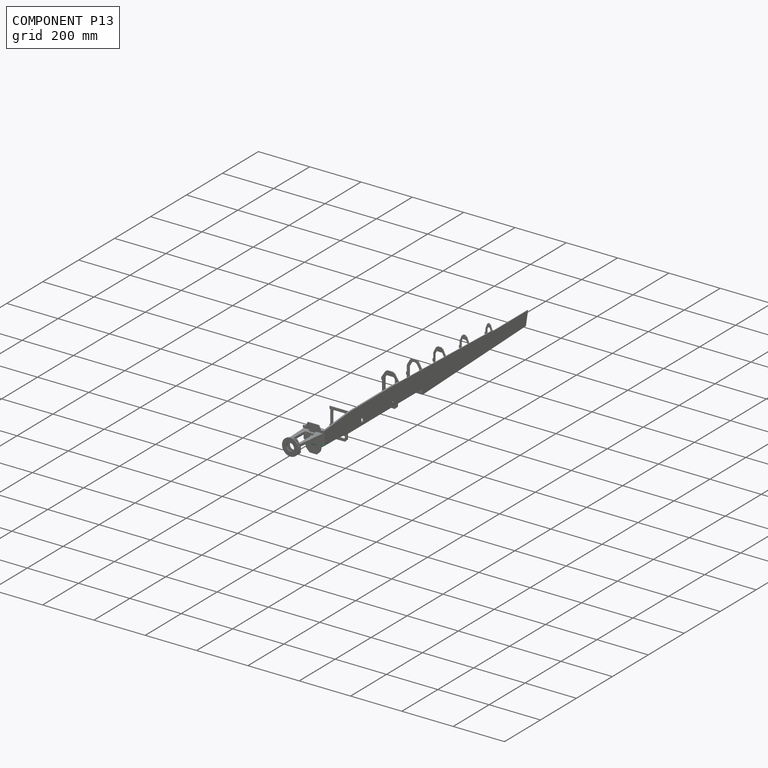
[diagram: component P13 — assembled]
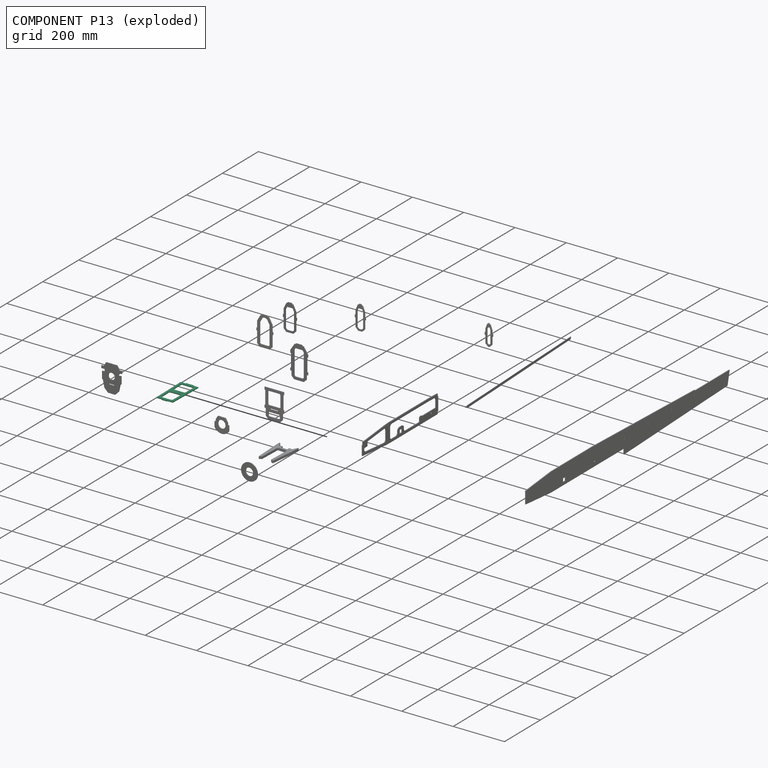
[diagram: component P13 — exploded]
COMPONENT P13 — recipe-attached (CADFS 00352440, mesh-verified: the recipe's output STEP matches this component's geometry to below the mesh-comparison resolution (tessellation chordal tolerance ~0.24 mm)).
Held by: PLANAR mate "Planar 31" to P12; PLANAR mate "Planar 29" to P12; PLANAR mate "Planar 30" to P12.
Construction recipe (FeatureScript — the CAD program that rebuilds this solid; sketch coordinates are in the units given by the * unit suffixes, e.g. mm):

FeatureScript 2581;
import(path : "onshape/std/geometry.fs", version : "2581.0");
import(path : "onshape/std/common.fs", version : "2581.0");
const mm = millimeter;
const VERTEX = EntityType.VERTEX;
const EDGE = EntityType.EDGE;
const FACE = EntityType.FACE;
const BODY = EntityType.BODY;
function v(x, y){return vector(x, y);}
function OD(order){return orderDisambiguation(order);}
function OSD(set){return originalSetDisambiguation(set);}
function TD(topology){return topologyDisambiguation(topology);}
function TDD(query){return trueDependencyDisambiguation(query);}
function sQuery(a, b, c) {return sketchEntityQuery(a, b, c);}

annotation { "Feature Type Name" : "Feature", "Feature Type Description" : "" }
export const myFeature = defineFeature(function(context is Context, id is Id, definition is map)
    precondition{}
    {
        {
            var Q0;
            Q0=qCreatedBy(makeId("Top.planeOp"),FACE);
            var sketch = newSketch(context, id + "F0", { "sketchPlane" : qUnion([Q0])});
            skLineSegment(sketch, "E0", {"start": v(0, 72) * mm, "end": v(-15, 72) * mm});
            skLineSegment(sketch, "E1", {"start": v(-15, 72) * mm, "end": v(-15, 69) * mm});
            skLineSegment(sketch, "E2", {"start": v(-15, 69) * mm, "end": v(-34.5, 69) * mm});
            skLineSegment(sketch, "E3", {"start": v(-34.5, 69) * mm, "end": v(-31.44, -69) * mm});
            skLineSegment(sketch, "E4", {"start": v(-31.44, -69) * mm, "end": v(-10, -69) * mm});
            skLineSegment(sketch, "E5", {"start": v(-10, -69) * mm, "end": v(-10, -72) * mm});
            skLineSegment(sketch, "E6", {"start": v(-10, -72) * mm, "end": v(0, -72) * mm});
            skLineSegment(sketch, "E7.MirrorCS", {"start": v(0, 72) * mm, "end": v(15, 72) * mm});
            skLineSegment(sketch, "E8.MirrorCS", {"start": v(15, 72) * mm, "end": v(15, 69) * mm});
            skLineSegment(sketch, "E9.MirrorCS", {"start": v(15, 69) * mm, "end": v(34.5, 69) * mm});
            skLineSegment(sketch, "E10.MirrorCS", {"start": v(34.5, 69) * mm, "end": v(31.44, -69) * mm});
            skLineSegment(sketch, "E11.MirrorCS", {"start": v(31.44, -69) * mm, "end": v(10, -69) * mm});
            skLineSegment(sketch, "E12.MirrorCS", {"start": v(10, -69) * mm, "end": v(10, -72) * mm});
            skLineSegment(sketch, "E13.MirrorCS", {"start": v(10, -72) * mm, "end": v(0, -72) * mm});
            skLineSegment(sketch, "E14", {"start": v(-34.5, 69) * mm, "end": v(34.5, 69) * mm, "construction": true});
            skLineSegment(sketch, "E15", {"start": v(-31.44, -69) * mm, "end": v(31.44, -69) * mm, "construction": true});
            skLineSegment(sketch, "E16", {"start": v(-32.97, 0) * mm, "end": v(32.97, 0) * mm, "construction": true});
            skLineSegment(sketch, "E17", {"start": v(-32.97, 0) * mm, "end": v(-34.5, 69) * mm, "construction": true});
            skLineSegment(sketch, "E18", {"start": v(32.97, 0) * mm, "end": v(34.5, 69) * mm, "construction": true});
            skLineSegment(sketch, "E19.0", {"start": v(-18.3, 10) * mm, "end": v(18.3, 10) * mm});
            skLineSegment(sketch, "E19.1", {"start": v(-23.3, 14.89) * mm, "end": v(-24.16, 53.89) * mm});
            skLineSegment(sketch, "E19.2", {"start": v(-19.16, 59) * mm, "end": v(19.16, 59) * mm});
            skLineSegment(sketch, "E19.3", {"start": v(23.3, 14.89) * mm, "end": v(24.16, 53.89) * mm});
            skLineSegment(sketch, "E20", {"start": v(-32.97, 0) * mm, "end": v(-31.44, -69) * mm, "construction": true});
            skLineSegment(sketch, "E21", {"start": v(31.44, -69) * mm, "end": v(32.97, 0) * mm, "construction": true});
            skLineSegment(sketch, "E22.0", {"start": v(-16.61, -10) * mm, "end": v(16.61, -10) * mm});
            skLineSegment(sketch, "E22.1", {"start": v(-22.61, -16.13) * mm, "end": v(-21.8, -53.13) * mm});
            skLineSegment(sketch, "E22.2", {"start": v(-15.8, -59) * mm, "end": v(15.8, -59) * mm});
            skLineSegment(sketch, "E22.3", {"start": v(21.8, -53.13) * mm, "end": v(22.61, -16.13) * mm});
            skPoint(sketch, "E23.visualSharp", {"position": v(-24.28, 59) * mm});
            skArc(sketch, "E23.filletArc", {"start": v(-19.16, 59) * mm, "mid": v(-22.74, 57.5) * mm, "end": v(-24.16, 53.89) * mm});
            skPoint(sketch, "E24.visualSharp", {"position": v(-23.2, 10) * mm});
            skArc(sketch, "E24.filletArc", {"start": v(-23.3, 14.89) * mm, "mid": v(-21.8, 11.43) * mm, "end": v(-18.3, 10) * mm});
            skPoint(sketch, "E25.visualSharp", {"position": v(23.2, 10) * mm});
            skArc(sketch, "E25.filletArc", {"start": v(18.3, 10) * mm, "mid": v(21.8, 11.43) * mm, "end": v(23.3, 14.89) * mm});
            skPoint(sketch, "E26.visualSharp", {"position": v(24.28, 59) * mm});
            skArc(sketch, "E26.filletArc", {"start": v(24.16, 53.89) * mm, "mid": v(22.74, 57.5) * mm, "end": v(19.16, 59) * mm});
            skPoint(sketch, "E27.visualSharp", {"position": v(-22.75, -10) * mm});
            skArc(sketch, "E27.filletArc", {"start": v(-16.61, -10) * mm, "mid": v(-20.9, -11.8) * mm, "end": v(-22.61, -16.13) * mm});
            skPoint(sketch, "E28.visualSharp", {"position": v(22.75, -10) * mm});
            skArc(sketch, "E28.filletArc", {"start": v(22.61, -16.13) * mm, "mid": v(20.9, -11.8) * mm, "end": v(16.61, -10) * mm});
            skPoint(sketch, "E29.visualSharp", {"position": v(21.66, -59) * mm});
            skArc(sketch, "E29.filletArc", {"start": v(15.8, -59) * mm, "mid": v(20, -57.29) * mm, "end": v(21.8, -53.13) * mm});
            skPoint(sketch, "E30.visualSharp", {"position": v(-21.66, -59) * mm});
            skArc(sketch, "E30.filletArc", {"start": v(-21.8, -53.13) * mm, "mid": v(-20, -57.29) * mm, "end": v(-15.8, -59) * mm});
            skSolve(sketch);
        }
        {
            var Q0;
            Q0=makeQuery(id+"F0.imprint","IMPRINT",FACE,{"disambiguationData":[TD([[makeQuery(id+"F0.imprint","IMPRINT",EDGE,{"derivedFrom":sQuery(id+"F0.wireOp",EDGE,"E0")}),1.0]])]});
            extrude(context, id + "F1", {"entities" : qUnion([Q0]), "depth" : 3 * mm, "offsetDistance" : 25 * mm});
        }
    });
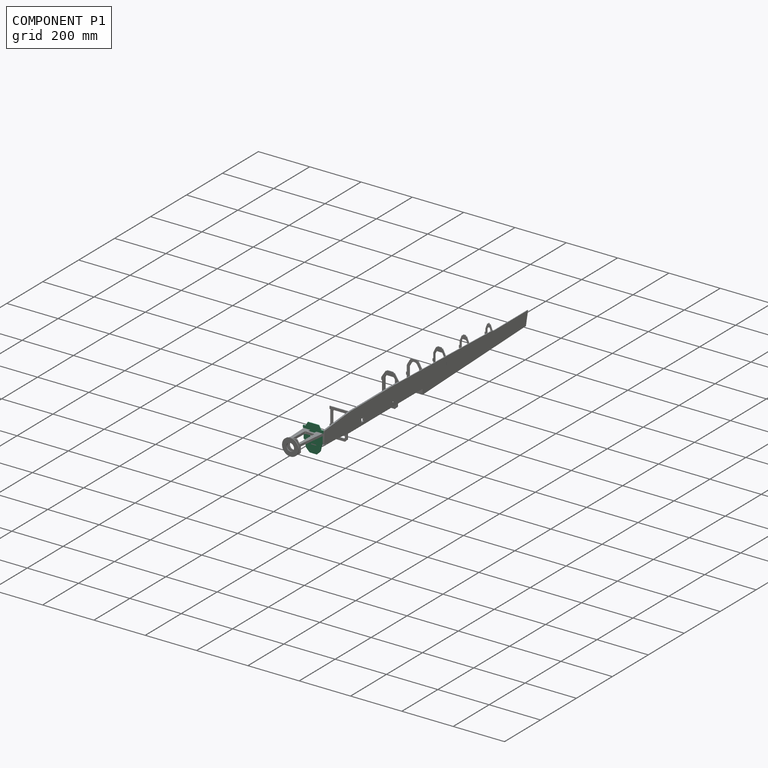
[diagram: component P1 — assembled]
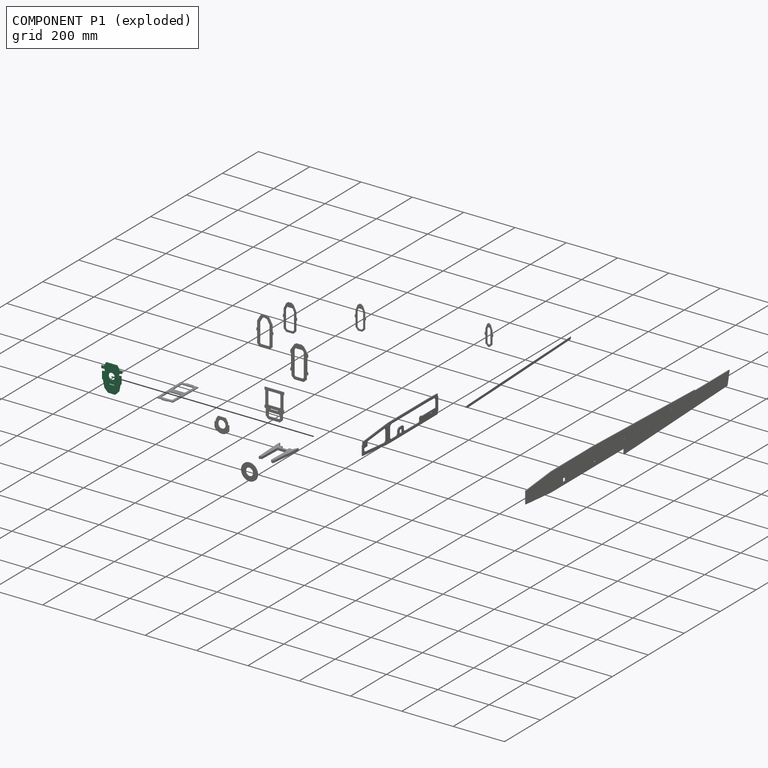
[diagram: component P1 — exploded]
COMPONENT P1 — recipe-attached (CADFS 00352441, mesh-verified: the recipe's output STEP matches this component's geometry to below the mesh-comparison resolution (tessellation chordal tolerance ~0.198 mm)).
Held by: PLANAR mate "Planar 21" to P9; PLANAR mate "Planar 24" to P2; PLANAR mate "Planar 23" to P2; PLANAR mate "Planar 22" to P9; PLANAR mate "Planar 20" to P4.
Construction recipe (FeatureScript — the CAD program that rebuilds this solid; sketch coordinates are in the units given by the * unit suffixes, e.g. mm):

FeatureScript 2581;
import(path : "onshape/std/geometry.fs", version : "2581.0");
import(path : "onshape/std/common.fs", version : "2581.0");
const mm = millimeter;
const VERTEX = EntityType.VERTEX;
const EDGE = EntityType.EDGE;
const FACE = EntityType.FACE;
const BODY = EntityType.BODY;
function v(x, y){return vector(x, y);}
function OD(order){return orderDisambiguation(order);}
function OSD(set){return originalSetDisambiguation(set);}
function TD(topology){return topologyDisambiguation(topology);}
function TDD(query){return trueDependencyDisambiguation(query);}
function sQuery(a, b, c) {return sketchEntityQuery(a, b, c);}

annotation { "Feature Type Name" : "Feature", "Feature Type Description" : "" }
export const myFeature = defineFeature(function(context is Context, id is Id, definition is map)
    precondition{}
    {
        {
            var Q0;
            Q0=qCreatedBy(makeId("Front.planeOp"),FACE);
            var sketch = newSketch(context, id + "F0", { "sketchPlane" : qUnion([Q0])});
            skLineSegment(sketch, "E0.bottom", {"start": v(21.5, 37.1) * mm, "end": v(-21.5, 37.1) * mm});
            skLineSegment(sketch, "E0.left", {"start": v(40, 22.1) * mm, "end": v(40, 12.1) * mm});
            skLineSegment(sketch, "E0.right", {"start": v(-40, 22.1) * mm, "end": v(-40, 12.1) * mm});
            skPoint(sketch, "E0.middle", {"position": v(0, 0) * mm});
            skLineSegment(sketch, "E1", {"start": v(-40, 22.1) * mm, "end": v(-30, 22.1) * mm});
            skLineSegment(sketch, "E2", {"start": v(-30, 22.1) * mm, "end": v(-21.5, 37.1) * mm});
            skLineSegment(sketch, "E3.MirrorCS", {"start": v(30, 22.1) * mm, "end": v(21.5, 37.1) * mm});
            skLineSegment(sketch, "E4.MirrorCS", {"start": v(40, 22.1) * mm, "end": v(30, 22.1) * mm});
            skLineSegment(sketch, "E5", {"start": v(-27, 12.1) * mm, "end": v(-27, 3.1) * mm});
            skLineSegment(sketch, "E6", {"start": v(-27, 3.1) * mm, "end": v(-37, 3.1) * mm});
            skCircle(sketch, "E7", {"center": v(0, -6.77) * mm, "radius": 12.5 * mm});
            skLineSegment(sketch, "E8.MirrorCS", {"start": v(27, 12.1) * mm, "end": v(27, 3.1) * mm});
            skLineSegment(sketch, "E9.MirrorCS", {"start": v(27, 3.1) * mm, "end": v(37, 3.1) * mm});
            skLineSegment(sketch, "E10", {"start": v(-27, 12.1) * mm, "end": v(-40, 12.1) * mm});
            skLineSegment(sketch, "E11", {"start": v(27, 12.1) * mm, "end": v(40, 12.1) * mm});
            skLineSegment(sketch, "E12.top", {"start": v(-13.96, -70.9) * mm, "end": v(13.96, -70.9) * mm, "construction": true});
            skLineSegment(sketch, "E13", {"start": v(-40, -25.9) * mm, "end": v(-33.48, -55.24) * mm, "construction": true});
            skPoint(sketch, "E14.visualSharp", {"position": v(-30, -70.9) * mm});
            skArc(sketch, "E14.filletArc", {"start": v(-33.48, -55.24) * mm, "mid": v(-26.47, -66.5) * mm, "end": v(-13.96, -70.9) * mm, "construction": true});
            skLineSegment(sketch, "E15.MirrorCS", {"start": v(40, -25.9) * mm, "end": v(33.48, -55.24) * mm, "construction": true});
            skArc(sketch, "E16.MirrorCS", {"start": v(33.48, -55.24) * mm, "mid": v(26.47, -66.5) * mm, "end": v(13.96, -70.9) * mm, "construction": true});
            skPoint(sketch, "E17.orphan", {"position": v(40, -70.9) * mm});
            skLineSegment(sketch, "E18", {"start": v(-40, -25.9) * mm, "end": v(-37, -25.9) * mm, "construction": true});
            skLineSegment(sketch, "E19", {"start": v(-37, -25.9) * mm, "end": v(-37, 3.1) * mm});
            skPoint(sketch, "E20.end.orphan", {"position": v(-40, 3.1) * mm});
            skLineSegment(sketch, "E21.MirrorCS", {"start": v(37, -25.9) * mm, "end": v(37, 3.1) * mm});
            skLineSegment(sketch, "E22.MirrorCS", {"start": v(40, -25.9) * mm, "end": v(37, -25.9) * mm, "construction": true});
            skPoint(sketch, "E23.end.orphan", {"position": v(40, 3.1) * mm});
            skLineSegment(sketch, "E24", {"start": v(-37, -25.9) * mm, "end": v(-34, -25.9) * mm});
            skLineSegment(sketch, "E25", {"start": v(-34, -25.9) * mm, "end": v(-27.76, -53.97) * mm});
            skLineSegment(sketch, "E26", {"start": v(-33.48, -55.24) * mm, "end": v(-27.76, -53.97) * mm, "construction": true});
            skLineSegment(sketch, "E27", {"start": v(-13.96, -70.9) * mm, "end": v(-13.96, -67.9) * mm, "construction": true});
            skLineSegment(sketch, "E28", {"start": v(-13.96, -67.9) * mm, "end": v(13.96, -67.9) * mm});
            skLineSegment(sketch, "E29", {"start": v(13.96, -67.9) * mm, "end": v(13.96, -70.9) * mm, "construction": true});
            skLineSegment(sketch, "E30", {"start": v(-27.76, -53.97) * mm, "end": v(-13.96, -67.9) * mm});
            skLineSegment(sketch, "E31.MirrorCS", {"start": v(-13.96, -67.9) * mm, "end": v(-13.96, -70.9) * mm, "construction": true});
            skLineSegment(sketch, "E32.MirrorCS", {"start": v(13.96, -70.9) * mm, "end": v(-13.96, -70.9) * mm, "construction": true});
            skLineSegment(sketch, "E33.MirrorCS", {"start": v(13.96, -70.9) * mm, "end": v(13.96, -67.9) * mm, "construction": true});
            skLineSegment(sketch, "E34.MirrorCS", {"start": v(33.48, -55.24) * mm, "end": v(27.76, -53.97) * mm, "construction": true});
            skLineSegment(sketch, "E35.MirrorCS", {"start": v(37, -25.9) * mm, "end": v(34, -25.9) * mm});
            skLineSegment(sketch, "E36.MirrorCS", {"start": v(34, -25.9) * mm, "end": v(27.76, -53.97) * mm});
            skLineSegment(sketch, "E37.MirrorCS", {"start": v(27.76, -53.97) * mm, "end": v(13.96, -67.9) * mm});
            skLineSegment(sketch, "E38", {"start": v(-27.76, -53.97) * mm, "end": v(-27.76, -25.9) * mm, "construction": true});
            skLineSegment(sketch, "E39", {"start": v(-27.76, -25.9) * mm, "end": v(-34, -25.9) * mm, "construction": true});
            skLineSegment(sketch, "E40.bottom", {"start": v(-10, -34.4) * mm, "end": v(10, -34.4) * mm});
            skLineSegment(sketch, "E40.top", {"start": v(-10, -37.4) * mm, "end": v(10, -37.4) * mm});
            skLineSegment(sketch, "E40.left", {"start": v(-10, -34.4) * mm, "end": v(-10, -37.4) * mm});
            skLineSegment(sketch, "E40.right", {"start": v(10, -34.4) * mm, "end": v(10, -37.4) * mm});
            skLineSegment(sketch, "E41", {"start": v(-31.44, -37.4) * mm, "end": v(31.44, -37.4) * mm, "construction": true});
            skSolve(sketch);
        }
        {
            var Q0;
            Q0=makeQuery(id+"F0.imprint","IMPRINT",FACE,{"disambiguationData":[TD([[makeQuery(id+"F0.imprint","IMPRINT",EDGE,{"derivedFrom":sQuery(id+"F0.wireOp",EDGE,"E0.bottom")}),1.0]])]});
            extrude(context, id + "F1", {"entities" : qUnion([Q0]), "offsetDistance" : 25 * mm, "depth" : 3 * mm, "symmetric" : true});
        }
    });
